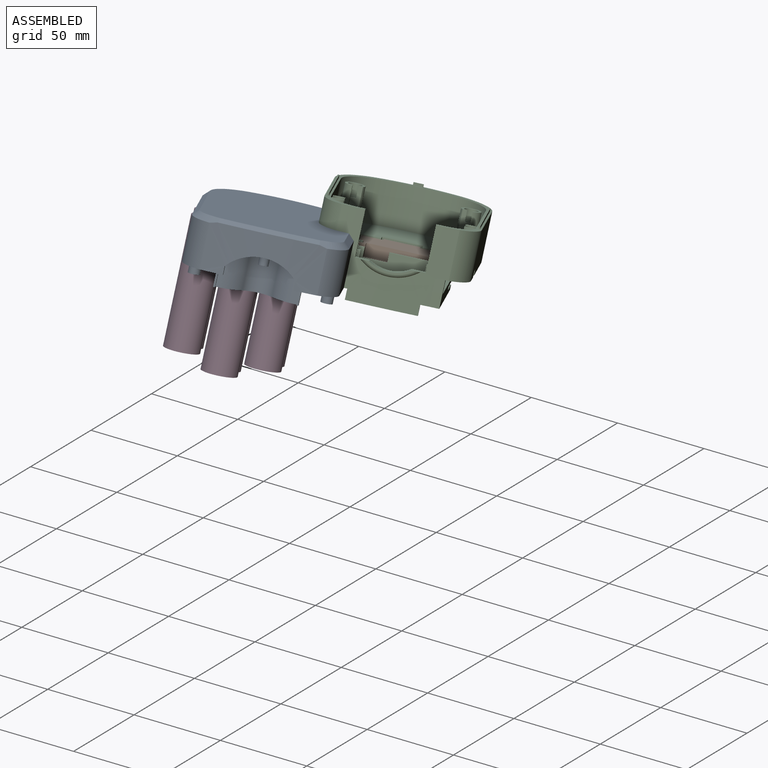
[diagram: assembled view]
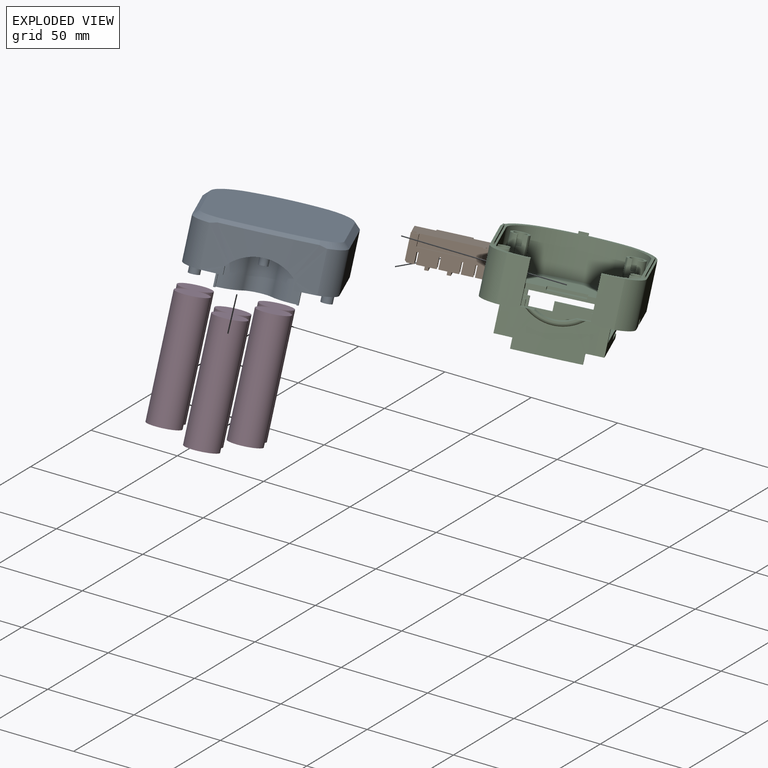
[diagram: exploded view]
GUIDED TOUR — FREECAD ASSEMBLY "Case"

This assembly has 4 components, labeled P0..P3 below (a component is one placed body or linked part; the same part can appear more than once), held together by 0 modeled joints plus 5 derived contact edges. A joint is a constraint between two components; its type names the relative motion it leaves free:
  CONTACT — a derived adjacency edge — the two components touch in the source model (clearance under 2% of the assembly's diagonal); it is measured from the geometry, not a modeled constraint.
Axis/direction vectors are unit vectors and 'through' points are millimeter coordinates, both in the assembly's world frame.

MATES
  1. CONTACT "contact_0_1": P0 <-> P1, contact direction (0.557, 0.830, 0.014) through (-5.95, 88.37, -22.90) mm (derived from contact, not a modeled constraint)
  2. CONTACT "contact_0_2": P0 <-> P2, contact direction (1.000, 0.000, 0.000) through (-9.69, 91.87, -24.08) mm (derived from contact, not a modeled constraint)
  3. CONTACT "contact_0_3": P0 <-> P3, contact direction (-0.359, 0.256, -0.898) through (-14.92, 54.15, 5.76) mm (derived from contact, not a modeled constraint)
  4. CONTACT "contact_1_2": P1 <-> P2, contact direction (0.000, 0.000, 1.000) through (-5.37, 91.90, -23.10) mm (derived from contact, not a modeled constraint)
  5. CONTACT "contact_2_3": P2 <-> P3, contact direction (-1.000, 0.000, 0.000) through (-11.04, 62.23, 1.64) mm (derived from contact, not a modeled constraint)

ASSEMBLY ORDER
  1. P0 — the base component [order heuristic]
  2. P1 [order heuristic]
  3. P2 [order heuristic]
  4. P3 [order heuristic]
Order-tag legend:
  [order heuristic] — this assembly is geometrically interlocked (no collision-free removal order exists), so components are listed in mate-graph order; insertion feasibility is not verified.

Of the 4 components, 4 carry a construction recipe — the FreeCAD feature program (sketches with constraints, then the solid features that consume them) that regenerates the part from scratch, quoted from this document or from the linked companion document it references; the rest are supplied as boundary geometry only. The tour below walks the components in assembly order: each is shown spotlighted twice — in the assembled view, then in the exploded view, where a leader line traces a displaced component back to its assembled socket (components that stay in place when exploded have no leader line; saturated green if recipe-attached, orange if geometry-only; every other component desaturated gray) — followed by its recipe or geometry summary and the mates that hold it.
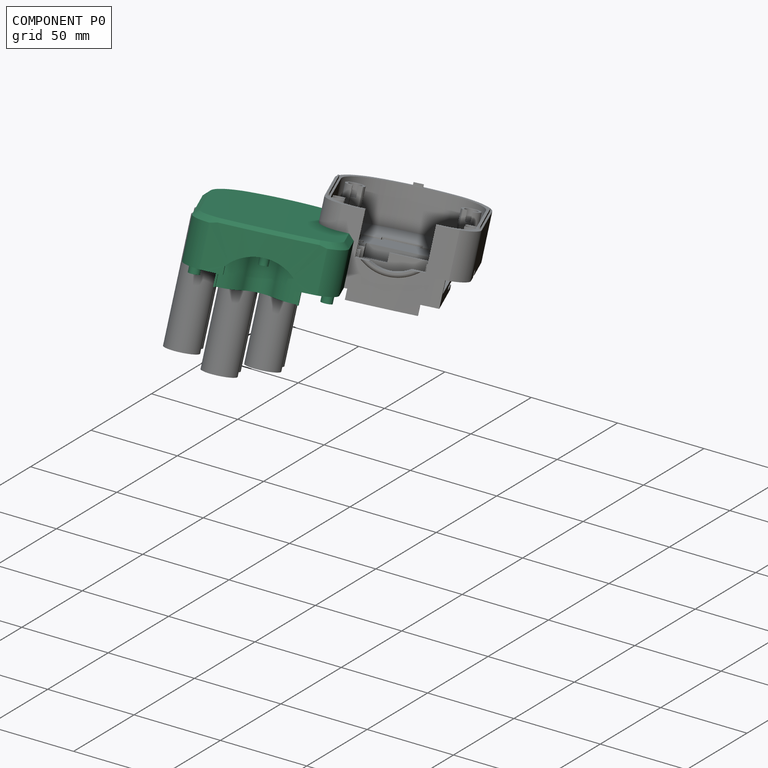
[diagram: component P0 — assembled]
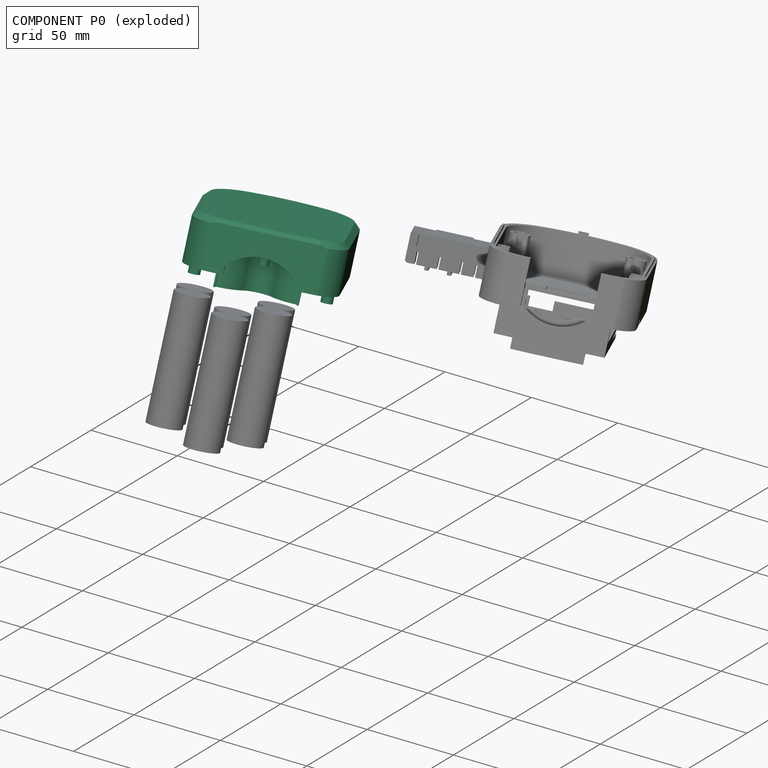
[diagram: component P0 — exploded]
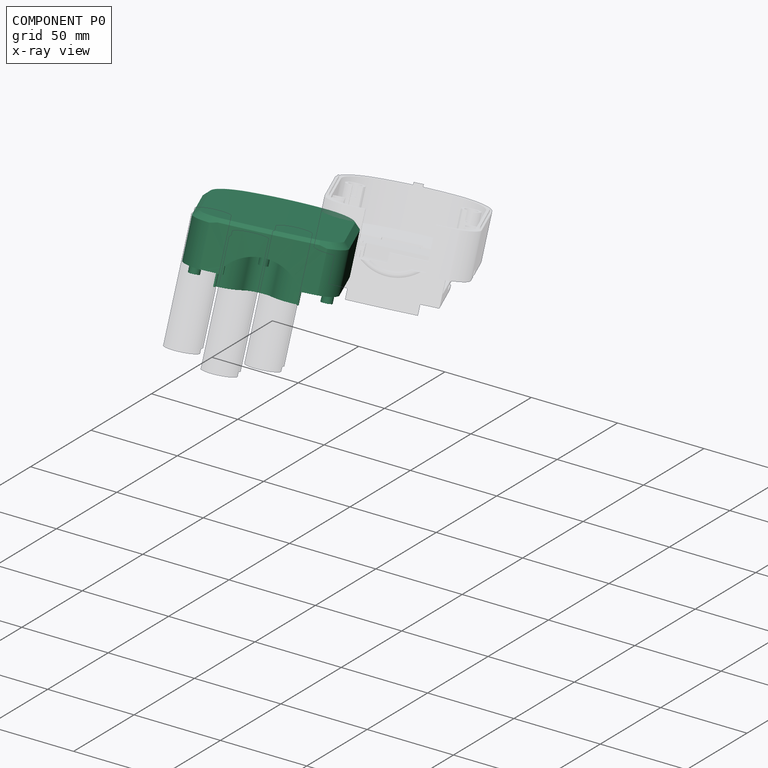
[diagram: component P0 — x-ray view]
COMPONENT P0 — recipe-attached ("Bottom001", modeled in this document).
Held by: resting contact with P1 (derived edge); resting contact with P2 (derived edge); resting contact with P3 (derived edge).
Construction recipe (the document's own serialized feature program — sketch geometry with constraints, then the solid features built on it; lengths are millimeters unless a unit is written):

FEATURE [PartDesign::FeatureBase] Clone
  BaseFeature = -> Body
  Suppressed = false
FEATURE [Sketcher::SketchObject] Sketch001
  ArcFitTolerance = 1e-06
  AttachmentSupport = -> [Clone]
  ExternalGeometry = -> [Clone]
  ExternalTypes = [0]
  FullyConstrained = true
  MakeInternals = false
  MapMode = 5
  Placement = pos=(0,0,0) rot=(1,0,0;3.14159rad)
  sketch-geometry (7):
    g0: LineSegment StartX=-19.75 StartY=-4.16832 StartZ=0 EndX=19.75 EndY=-4.16832 EndZ=0
    g1: LineSegment StartX=19.75 StartY=-4.16832 StartZ=0 EndX=19.75 EndY=-6.36832 EndZ=0
    g2: ArcOfCircle CenterX=19.75 CenterY=-22.1695 CenterZ=0 NormalX=0 NormalY=0 NormalZ=1 AngleXU=0 Radius=15.8011 StartAngle=1.5708 EndAngle=2.49201
    g3: ArcOfCircle CenterX=0 CenterY=-7.16832 CenterZ=0 NormalX=0 NormalY=0 NormalZ=1 AngleXU=0 Radius=9 StartAngle=3.79118 EndAngle=5.6336
    g4: ArcOfCircle CenterX=-19.75 CenterY=-22.1695 CenterZ=0 NormalX=0 NormalY=0 NormalZ=1 AngleXU=0 Radius=15.8011 StartAngle=0.649586 EndAngle=1.5708
    g5: LineSegment StartX=-19.75 StartY=-6.36832 StartZ=0 EndX=-19.75 EndY=-4.16832 EndZ=0
    g6: GeomPoint X=0 Y=-16.1683 Z=0
  constraints (20):
    c: Horizontal(g0)
    c: Coincident(g0,g1)
    c: Vertical(g1)
    c: Perpendicular(g1,g2) = 4.71239
    c: Tangent(g2,g3) = 1.5708
    c: Tangent(g3,g4) = 1.5708
    c: Coincident(g4,g5)
    c: Coincident(g5,g0)
    c: Vertical(g5)
    c: Perpendicular(g4,g5)
    c: Radius(g3) = 9
    c: PointOnObject(g3,g-2)
    c: Equal(g2,g4)
    c: DistanceX(g0,g0) = 39.5
    c: Equal(g1,g5)
    c: DistanceY(g1,g1) = 2.2
    c: PointOnObject(g6,g3)
    c: PointOnObject(g6,g-2)
    c: Distance(g6,g0) = 12
    c: Distance(g-3,g0) = 3.25
FEATURE [PartDesign::Pocket] Pocket
  BaseFeature = -> Clone
  Direction = (0,0,1)
  Length = 30
  Length2 = 5
  Offset = -2
  Profile = -> Sketch001
  ReferenceAxis = -> Sketch001 [N_Axis]
  Refine = true
  SideType = 0
  Suppressed = false
  Type = 0
  Type2 = 0
FEATURE [Sketcher::SketchObject] Sketch002
  ArcFitTolerance = 1e-06
  AttachmentSupport = -> [Pocket]
  ExternalGeometry = -> [Pocket]
  ExternalTypes = [0]
  FullyConstrained = true
  MakeInternals = false
  MapMode = 5
  Placement = pos=(0,0,0) rot=(1,0,0;3.14159rad)
  sketch-geometry (12):
    g0: LineSegment StartX=-35.25 StartY=-18.6683 StartZ=0 EndX=-35.25 EndY=-77 EndZ=0
    g1: ArcOfCircle CenterX=-12.045 CenterY=-77 CenterZ=0 NormalX=0 NormalY=0 NormalZ=1 AngleXU=0 Radius=23.205 StartAngle=3.14159 EndAngle=4.35935
    g2: ArcOfCircle CenterX=0 CenterY=-44.3109 CenterZ=0 NormalX=0 NormalY=0 NormalZ=1 AngleXU=0 Radius=58.0426 StartAngle=4.35935 EndAngle=5.06542
    g3: ArcOfCircle CenterX=12.045 CenterY=-77 CenterZ=0 NormalX=0 NormalY=0 NormalZ=1 AngleXU=0 Radius=23.205 StartAngle=5.06542 EndAngle=6.28319
    g4: LineSegment StartX=35.25 StartY=-77 StartZ=0 EndX=35.25 EndY=-18.6683 EndZ=0
    g5: ArcOfCircle CenterX=20.75 CenterY=-18.6683 CenterZ=0 NormalX=0 NormalY=0 NormalZ=1 AngleXU=0 Radius=14.5 StartAngle=0 EndAngle=1.5708
    g6: LineSegment StartX=20.75 StartY=-4.16832 StartZ=0 EndX=20.75 EndY=-7.36832 EndZ=0
    g7: ArcOfCircle CenterX=20.75 CenterY=-24.0445 CenterZ=0 NormalX=0 NormalY=0 NormalZ=1 AngleXU=0 Radius=16.6761 StartAngle=1.5708 EndAngle=2.45326
    g8: ArcOfCircle CenterX=0 CenterY=-6.97699 CenterZ=0 NormalX=0 NormalY=0 NormalZ=1 AngleXU=0 Radius=10.1913 StartAngle=3.82992 EndAngle=5.59486
    g9: ArcOfCircle CenterX=-20.75 CenterY=-24.0445 CenterZ=0 NormalX=0 NormalY=0 NormalZ=1 AngleXU=0 Radius=16.6761 StartAngle=0.688328 EndAngle=1.5708
    g10: LineSegment StartX=-20.75 StartY=-7.36832 StartZ=0 EndX=-20.75 EndY=-4.16832 EndZ=0
    g11: ArcOfCircle CenterX=-20.75 CenterY=-18.6683 CenterZ=0 NormalX=0 NormalY=0 NormalZ=1 AngleXU=0 Radius=14.5 StartAngle=1.5708 EndAngle=3.14159
  constraints (33):
    c: Vertical(g0)
    c: Tangent(g0,g1) = -1.5708
    c: Tangent(g1,g2) = -1.5708
    c: Tangent(g2,g3) = -1.5708
    c: Tangent(g3,g4) = -1.5708
    c: Tangent(g4,g5) = -1.5708
    c: Coincident(g5,g6)
    c: Vertical(g6)
    c: Perpendicular(g6,g7) = 4.71239
    c: Tangent(g7,g8) = 1.5708
    c: Tangent(g8,g9) = 1.5708
    c: Perpendicular(g9,g10) = 4.71239
    c: Perpendicular(g10,g11) = 1.5708
    c: Tangent(g11,g0) = -1.5708
    c: Vertical(g4)
    c: Equal(g0,g4)
    c: PointOnObject(g2,g-2)
    c: PointOnObject(g8,g-2)
    c: Horizontal(g7,g8)
    c: Vertical(g10)
    c: Equal(g9,g7)
    c: Horizontal(g10,g5)
    c: Equal(g5,g11)
    c: Distance(g-3,g4) = 3
    c: Distance(g2,g-7) = 3
    c: Distance(g-10,g0) = 3
    c: Distance(g6,g-12) = 1
    c: Horizontal(g10,g-16)
    c: DistanceY(g9,g-16) = 1
    c: Distance(g8,g-14) = 1
    c: Distance(g-13,g7) = -1.25
    c: Horizontal(g0,g-10)
    c: Distance(g1,g-9) = 0.67
FEATURE [PartDesign::Pocket] Pocket001
  BaseFeature = -> Pocket
  Direction = (0,0,1)
  Length = 5
  Length2 = 5
  Profile = -> Sketch002
  ReferenceAxis = -> Sketch002 [N_Axis]
  Refine = true
  SideType = 0
  Suppressed = false
  Type = 3
  Type2 = 0
  UpToFace = -> Pocket [Face17]
FEATURE [Sketcher::SketchObject] Sketch003
  ArcFitTolerance = 1e-06
  AttachmentSupport = -> [Pocket001]
  ExternalGeometry = -> [Pocket001]
  ExternalTypes = [0,0]
  FullyConstrained = true
  MakeInternals = false
  MapMode = 5
  Placement = pos=(0,0,30) rot=(1,0,0;3.14159rad)
  sketch-geometry (8):
    g0: Circle CenterX=-32.25 CenterY=-31.1683 CenterZ=0 NormalX=0 NormalY=0 NormalZ=1 AngleXU=0 Radius=3
    g1: Circle CenterX=-28.25 CenterY=-81.5097 CenterZ=0 NormalX=0 NormalY=0 NormalZ=1 AngleXU=0 Radius=3
    g2: Circle CenterX=28.25 CenterY=-81.5097 CenterZ=0 NormalX=0 NormalY=0 NormalZ=1 AngleXU=0 Radius=3
    g3: Circle CenterX=32.25 CenterY=-31.1683 CenterZ=0 NormalX=0 NormalY=0 NormalZ=1 AngleXU=0 Radius=3
    g4: GeomPoint X=0 Y=-31.1683 Z=0
    g5: GeomPoint X=0 Y=-81.5097 Z=0
    g6: LineSegment [constr] StartX=19.75 StartY=-4.16832 StartZ=0 EndX=19.75 EndY=-34.1683 EndZ=0
    g7: LineSegment [constr] StartX=32.25 StartY=-34.1683 StartZ=0 EndX=19.75 EndY=-34.1683 EndZ=0
  constraints (19):
    c: Horizontal(g0,g3)
    c: Horizontal(g2,g1)
    c: Equal(g1,g0)
    c: Equal(g0,g3)
    c: Equal(g3,g2)
    c: Diameter(g2) = 6
    c: Distance(g3,g0) = 58.5
    c: PointOnObject(g4,g-2)
    c: Symmetric(g0,g3,g4)
    c: Distance(g1,g0) = 44.5
    c: PointOnObject(g5,g-2)
    c: Symmetric(g1,g2,g5)
    c: Distance(g1,g2) = 50.5
    c: Coincident(g6,g-25)
    c: Vertical(g6)
    c: Tangent(g7,g3) = 1.5708
    c: Coincident(g7,g6)
    c: Horizontal(g7)
    c: DistanceY(g6,g6) = 30
FEATURE [PartDesign::Pad] Pad001
  BaseFeature = -> Pocket001
  Direction = (0,0,-1)
  Length = 30
  Length2 = 10
  Profile = -> Sketch003
  ReferenceAxis = -> Sketch003 [N_Axis]
  Refine = true
  SideType = 0
  Suppressed = false
  Type = 0
  Type2 = 0
FEATURE [Sketcher::SketchObject] Sketch004
  ArcFitTolerance = 1e-06
  AttachmentSupport = -> [Pad001]
  ExternalGeometry = -> [Pad001]
  ExternalTypes = [0,0,0]
  FullyConstrained = true
  MakeInternals = false
  MapMode = 5
  Placement = pos=(0,0,0) rot=(1,0,0;3.14159rad)
  sketch-geometry (5):
    g0: LineSegment StartX=-31.0784 StartY=-80.5097 StartZ=0 EndX=-34.9831 EndY=-80.5097 EndZ=0
    g1: LineSegment StartX=-34.9831 StartY=-80.5097 StartZ=0 EndX=-34.9831 EndY=-82.5097 EndZ=0
    g2: LineSegment StartX=-34.9831 StartY=-82.5097 StartZ=0 EndX=-31.0784 EndY=-82.5097 EndZ=0
    g3: LineSegment StartX=-31.0784 StartY=-82.5097 StartZ=0 EndX=-31.0784 EndY=-80.5097 EndZ=0
    g4: GeomPoint X=-31.0784 Y=-81.5097 Z=0
  constraints (13):
    c: Coincident(g0,g1)
    c: Coincident(g1,g2)
    c: Coincident(g2,g3)
    c: Coincident(g3,g0)
    c: Horizontal(g0)
    c: Horizontal(g2)
    c: Vertical(g1)
    c: Vertical(g3)
    c: PointOnObject(g0,g-3)
    c: PointOnObject(g0,g-29)
    c: PointOnObject(g2,g-3)
    c: Symmetric(g3,g3,g4)
    c: DistanceY(g3,g3) = 2
FEATURE [PartDesign::Pad] Pad002
  BaseFeature = -> Pad001
  Direction = (0,0,-1)
  Length = 10
  Length2 = 10
  Profile = -> Sketch004
  ReferenceAxis = -> Sketch004 [N_Axis]
  Refine = true
  SideType = 0
  Suppressed = false
  Type = 3
  Type2 = 0
  UpToFace = -> Pad001 [Face28]
FEATURE [PartDesign::Mirrored] Mirrored
  BaseFeature = -> Pad002
  MirrorPlane = -> Sketch004 [V_Axis]
  Originals = -> [Pad002]
  Refine = true
  Suppressed = false
  TransformMode = 0
FEATURE [Sketcher::SketchObject] Sketch005
  ArcFitTolerance = 1e-06
  AttachmentSupport = -> [Mirrored]
  ExternalGeometry = -> [Mirrored]
  ExternalTypes = [0,0,0]
  FullyConstrained = false
  MakeInternals = false
  MapMode = 5
  Placement = pos=(0,0,0) rot=(1,0,0;3.14159rad)
  sketch-geometry (12):
    g0: LineSegment StartX=-54.6573 StartY=0 StartZ=0 EndX=-54.6573 EndY=-111 EndZ=0
    g1: LineSegment StartX=-54.6573 StartY=-111 StartZ=0 EndX=54.6573 EndY=-111 EndZ=0
    g2: LineSegment StartX=54.6573 StartY=-111 StartZ=0 EndX=54.6573 EndY=0 EndZ=0
    g3: LineSegment StartX=54.6573 StartY=0 StartZ=0 EndX=-54.6573 EndY=0 EndZ=0
    g4: Circle CenterX=-32.25 CenterY=-31.1683 CenterZ=0 NormalX=0 NormalY=0 NormalZ=1 AngleXU=0 Radius=3
    g5: Circle CenterX=28.25 CenterY=-81.5097 CenterZ=0 NormalX=0 NormalY=0 NormalZ=1 AngleXU=0 Radius=3
    g6: Circle CenterX=-28.25 CenterY=-81.5097 CenterZ=0 NormalX=0 NormalY=0 NormalZ=1 AngleXU=0 Radius=3
    g7: Circle CenterX=32.25 CenterY=-31.1683 CenterZ=0 NormalX=0 NormalY=0 NormalZ=1 AngleXU=0 Radius=3
    g8: LineSegment StartX=20.75 StartY=-4.16832 StartZ=0 EndX=-20.75 EndY=-4.16832 EndZ=0
    g9: LineSegment StartX=-20.75 StartY=-4.16832 StartZ=0 EndX=-20.75 EndY=-18.1683 EndZ=0
    g10: LineSegment StartX=-20.75 StartY=-18.1683 StartZ=0 EndX=20.75 EndY=-18.1683 EndZ=0
    g11: LineSegment StartX=20.75 StartY=-18.1683 StartZ=0 EndX=20.75 EndY=-4.16832 EndZ=0
  constraints (29):
    c: Coincident(g0,g1)
    c: Coincident(g1,g2)
    c: Coincident(g2,g3)
    c: Coincident(g3,g0)
    c: Vertical(g0)
    c: Vertical(g2)
    c: Horizontal(g1)
    c: Horizontal(g3)
    c: Symmetric(g3,g3,g-1)
    c: DistanceY(g2,g2) = 111
    c: Coincident(g4,g-41)
    c: PointOnObject(g-41,g4)
    c: Coincident(g5,g-21)
    c: PointOnObject(g-21,g5)
    c: Coincident(g6,g-28)
    c: PointOnObject(g-28,g6)
    c: Coincident(g7,g-42)
    c: PointOnObject(g-18,g7)
    c: Coincident(g8,g9)
    c: Coincident(g9,g10)
    c: Coincident(g10,g11)
    c: Coincident(g11,g8)
    c: Horizontal(g8)
    c: Horizontal(g10)
    c: Vertical(g9)
    c: Vertical(g11)
    c: Coincident(g8,g-16)
    c: PointOnObject(g-33,g9)
    c: Distance(g-13,g10) = 1
FEATURE [PartDesign::Pocket] Pocket002
  BaseFeature = -> Mirrored
  Direction = (0,0,1)
  Length = 7
  Length2 = 5
  Profile = -> Sketch005
  ReferenceAxis = -> Sketch005 [N_Axis]
  Refine = true
  SideType = 0
  Suppressed = false
  Type = 0
  Type2 = 0
FEATURE [PartDesign::Chamfer] Chamfer
  Angle = 45
  Base = -> Pocket002 [Edge33]
  BaseFeature = -> Pocket002
  ChamferType = 0
  FlipDirection = false
  Refine = true
  Size = 3
  Size2 = 1
  SupportTransform = false
  Suppressed = false
  UseAllEdges = false
FEATURE [PartDesign::Chamfer] Chamfer001
  Angle = 45
  Base = -> Chamfer [Edge44]
  BaseFeature = -> Chamfer
  ChamferType = 0
  FlipDirection = false
  Refine = true
  Size = 2
  Size2 = 1
  SupportTransform = false
  Suppressed = false
  UseAllEdges = false
FEATURE [Sketcher::SketchObject] Sketch006
  ArcFitTolerance = 1e-06
  AttachmentSupport = -> [Chamfer001]
  ExternalGeometry = -> [Chamfer001]
  ExternalTypes = [0]
  FullyConstrained = true
  MakeInternals = false
  MapMode = 5
  Placement = pos=(0,0,30) rot=(1,0,0;3.14159rad)
  sketch-geometry (1):
    g0: Circle CenterX=-1.974e-13 CenterY=-12.612 CenterZ=0 NormalX=0 NormalY=0 NormalZ=1 AngleXU=0 Radius=2.5
  constraints (2):
    c: Diameter(g0) = 5
    c: Symmetric(g-6,g-7,g0)
FEATURE [PartDesign::Pad] Pad003
  BaseFeature = -> Chamfer001
  Direction = (0,0,-1)
  Length = 12
  Length2 = 10
  Profile = -> Sketch006
  ReferenceAxis = -> Sketch006 [N_Axis]
  Refine = true
  SideType = 0
  Suppressed = false
  Type = 0
  Type2 = 0
FEATURE [PartDesign::Fillet] Fillet
  Base = -> Pad003 [Edge144,Edge121,Edge86]
  BaseFeature = -> Pad003
  Radius = 1
  Refine = true
  SupportTransform = false
  Suppressed = false
  UseAllEdges = false
FEATURE [PartDesign::Hole] Hole
  BaseFeature = -> Fillet
  BaseProfileType = 7
  CustomThreadClearance = 0
  Depth = 17
  DepthType = 0
  Diameter = 2.5
  DrillForDepth = false
  DrillPoint = 1
  DrillPointAngle = 118
  HoleCutCountersinkAngle = 90
  HoleCutCustomValues = false
  HoleCutDepth = 0
  HoleCutDiameter = 0
  HoleCutType = 0
  ModelThread = false
  Profile = -> Fillet [Face46,Face26,Face40,Face45]
  Refine = true
  Suppressed = false
  Tapered = false
  TaperedAngle = 90
  ThreadClass = 0
  ThreadDepth = 17
  ThreadDepthType = 0
  ThreadDiameter = 3
  ThreadDirection = 0
  ThreadFit = 0
  ThreadSize = 9
  ThreadType = 1
  Threaded = true
  UseCustomThreadClearance = false
FEATURE [Sketcher::SketchObject] Sketch008
  ArcFitTolerance = 1e-06
  AttachmentSupport = -> [Hole]
  ExternalGeometry = -> [Hole]
  ExternalTypes = [0,0]
  FullyConstrained = true
  MakeInternals = false
  MapMode = 5
  Placement = pos=(0,4.16832,0) rot=(0,0.707107,0.707107;3.14159rad)
  sketch-geometry (6):
    g0: ArcOfCircle CenterX=2.7e-15 CenterY=-3.37405 CenterZ=0 NormalX=0 NormalY=0 NormalZ=1 AngleXU=0 Radius=22.6741 StartAngle=0.709671 EndAngle=2.43192
    g1: GeomPoint X=0 Y=11.4 Z=0
    g2: LineSegment StartX=-17.2 StartY=11.4 StartZ=0 EndX=-17.2 EndY=7 EndZ=0
    g3: LineSegment StartX=-17.2 StartY=7 StartZ=0 EndX=17.2 EndY=7 EndZ=0
    g4: LineSegment StartX=17.2 StartY=7 StartZ=0 EndX=17.2 EndY=11.4 EndZ=0
    g5: GeomPoint X=0 Y=19.3 Z=0
  constraints (16):
    c: Horizontal(g0,g0)
    c: PointOnObject(g1,g-2)
    c: Symmetric(g0,g0,g1)
    c: Coincident(g0,g2)
    c: PointOnObject(g2,g-4)
    c: Vertical(g2)
    c: Coincident(g2,g3)
    c: PointOnObject(g3,g-4)
    c: Coincident(g3,g4)
    c: Coincident(g4,g0)
    c: Vertical(g4)
    c: DistanceX(g3,g3) = 34.4
    c: DistanceY(g4,g4) = 4.4
    c: PointOnObject(g5,g0)
    c: PointOnObject(g5,g-2)
    c: Distance(g5,g-3) = 1.3
FEATURE [PartDesign::Pocket] Pocket003
  BaseFeature = -> Hole
  Direction = (0,-1,2e-16)
  Length = 5
  Length2 = 5
  Profile = -> Sketch008
  ReferenceAxis = -> Sketch008 [N_Axis]
  Refine = true
  SideType = 0
  Suppressed = false
  Type = 0
  Type2 = 0
FEATURE [Sketcher::SketchObject] Sketch009
  ArcFitTolerance = 1e-06
  AttachmentSupport = -> [Pocket003]
  ExternalGeometry = -> [Pocket003]
  ExternalTypes = [0]
  FullyConstrained = true
  MakeInternals = false
  MapMode = 5
  Placement = pos=(0,0,7) rot=(1,0,0;3.14159rad)
  sketch-geometry (17):
    g0: LineSegment StartX=-37.375 StartY=-18.6683 StartZ=0 EndX=-37.375 EndY=-77 EndZ=0
    g1: LineSegment StartX=-37.375 StartY=-77 StartZ=0 EndX=-36.125 EndY=-77 EndZ=0
    g2: LineSegment StartX=-36.125 StartY=-77 StartZ=0 EndX=-36.125 EndY=-18.6683 EndZ=0
    g3: LineSegment StartX=-36.125 StartY=-18.6683 StartZ=0 EndX=-37.375 EndY=-18.6683 EndZ=0
    g4: LineSegment StartX=36.125 StartY=-18.6683 StartZ=0 EndX=36.125 EndY=-77 EndZ=0
    g5: LineSegment StartX=36.125 StartY=-77 StartZ=0 EndX=37.375 EndY=-77 EndZ=0
    g6: LineSegment StartX=37.375 StartY=-77 StartZ=0 EndX=37.375 EndY=-18.6683 EndZ=0
    g7: LineSegment StartX=37.375 StartY=-18.6683 StartZ=0 EndX=36.125 EndY=-18.6683 EndZ=0
    g8: LineSegment StartX=-2.5 StartY=-103.229 StartZ=0 EndX=-2.5 EndY=-104.479 EndZ=0
    g9: LineSegment StartX=-2.5 StartY=-104.479 StartZ=0 EndX=2.5 EndY=-104.479 EndZ=0
    g10: LineSegment StartX=2.5 StartY=-104.479 StartZ=0 EndX=2.5 EndY=-103.229 EndZ=0
    g11: LineSegment StartX=2.5 StartY=-103.229 StartZ=0 EndX=-2.5 EndY=-103.229 EndZ=0
    g12: GeomPoint X=36.75 Y=-77 Z=0
    g13: GeomPoint X=-36.75 Y=-77 Z=0
    g14: GeomPoint X=-2.7e-15 Y=-103.854 Z=0
    g15: GeomPoint X=0 Y=-102.354 Z=0
    g16: GeomPoint X=-5.3e-15 Y=-105.354 Z=0
  constraints (39):
    c: Coincident(g0,g1)
    c: Coincident(g1,g2)
    c: Coincident(g2,g3)
    c: Coincident(g3,g0)
    c: Vertical(g0)
    c: Vertical(g2)
    c: Horizontal(g1)
    c: Horizontal(g3)
    c: Coincident(g4,g5)
    c: Coincident(g5,g6)
    c: Coincident(g6,g7)
    c: Coincident(g7,g4)
    c: Vertical(g4)
    c: Vertical(g6)
    c: Horizontal(g5)
    c: Horizontal(g7)
    c: Coincident(g8,g9)
    c: Coincident(g9,g10)
    c: Coincident(g10,g11)
    c: Coincident(g11,g8)
    c: Vertical(g8)
    c: Vertical(g10)
    c: Horizontal(g9)
    c: Symmetric(g8,g10,g-2)
    c: DistanceY(g8,g8) = 1.25
    c: DistanceX(g11,g11) = 5
    c: Equal(g1,g8)
    c: Equal(g8,g5)
    c: Symmetric(g5,g5,g12)
    c: Symmetric(g-10,g-33,g12)
    c: Horizontal(g4,g-9)
    c: Horizontal(g-23,g2)
    c: Symmetric(g1,g1,g13)
    c: Symmetric(g-22,g-30,g13)
    c: PointOnObject(g15,g-2)
    c: PointOnObject(g16,g-31)
    c: PointOnObject(g15,g-16)
    c: Symmetric(g15,g16,g14)
    c: Symmetric(g8,g9,g14)
FEATURE [PartDesign::Pocket] Pocket004
  BaseFeature = -> Pocket003
  Direction = (0,0,1)
  Length = 3
  Length2 = 5
  Profile = -> Sketch009
  ReferenceAxis = -> Sketch009 [N_Axis]
  Refine = true
  SideType = 0
  Suppressed = false
  Type = 0
  Type2 = 0
FEATURE [Part::DatumPlane] DatumPlane
  AttachmentOffset = pos=(0,0,30) rot=(0,0,1;0rad)
  AttachmentSupport = -> [Pocket004]
  MapMode = 5
  Placement = pos=(0,34.1683,-6.7e-15) rot=(0,0.707107,0.707107;3.14159rad)
FEATURE [Sketcher::SketchObject] Sketch010
  ArcFitTolerance = 1e-06
  AttachmentSupport = -> [DatumPlane]
  ExternalGeometry = -> [Pocket004]
  ExternalTypes = [0]
  FullyConstrained = true
  MakeInternals = false
  MapMode = 5
  Placement = pos=(0,34.1683,-6.7e-15) rot=(0,0.707107,0.707107;3.14159rad)
  sketch-geometry (12):
    g0: ArcOfCircle CenterX=-20 CenterY=21 CenterZ=0 NormalX=0 NormalY=0 NormalZ=1 AngleXU=0 Radius=10.0231 StartAngle=2.02655 EndAngle=3.07375
    g1: ArcOfCircle CenterX=-20 CenterY=21 CenterZ=0 NormalX=0 NormalY=0 NormalZ=1 AngleXU=0 Radius=10.0231 StartAngle=0.0678445 EndAngle=1.11504
    g2: ArcOfCircle CenterX=0 CenterY=21 CenterZ=0 NormalX=0 NormalY=0 NormalZ=1 AngleXU=0 Radius=10.0231 StartAngle=2.02655 EndAngle=3.07375
    g3: ArcOfCircle CenterX=0 CenterY=21 CenterZ=0 NormalX=0 NormalY=0 NormalZ=1 AngleXU=0 Radius=10.0231 StartAngle=0.0678445 EndAngle=1.11504
    g4: ArcOfCircle CenterX=20 CenterY=21 CenterZ=0 NormalX=0 NormalY=0 NormalZ=1 AngleXU=0 Radius=10.0231 StartAngle=2.02655 EndAngle=3.07375
    g5: ArcOfCircle CenterX=20 CenterY=21 CenterZ=0 NormalX=0 NormalY=0 NormalZ=1 AngleXU=0 Radius=10.0231 StartAngle=0.0678445 EndAngle=1.11504
    g6: LineSegment StartX=-15.5885 StartY=30 StartZ=0 EndX=-4.41154 EndY=30 EndZ=0
    g7: LineSegment StartX=4.41154 StartY=30 StartZ=0 EndX=15.5885 EndY=30 EndZ=0
    g8: LineSegment StartX=30 StartY=21.6795 StartZ=0 EndX=30 EndY=30 EndZ=0
    g9: LineSegment StartX=24.4115 StartY=30 StartZ=0 EndX=30 EndY=30 EndZ=0
    g10: LineSegment StartX=-30 StartY=21.6795 StartZ=0 EndX=-30 EndY=30 EndZ=0
    g11: LineSegment StartX=-24.4115 StartY=30 StartZ=0 EndX=-30 EndY=30 EndZ=0
  constraints (39):
    c: Angle(g0) = 1.0472
    c: PointOnObject(g0,g-3)
    c: Angle(g1) = 1.0472
    c: Coincident(g1,g0)
    c: PointOnObject(g1,g-3)
    c: PointOnObject(g2,g-2)
    c: PointOnObject(g2,g-3)
    c: Angle(g3) = 1.0472
    c: Coincident(g3,g2)
    c: PointOnObject(g3,g-3)
    c: Angle(g4) = 1.0472
    c: PointOnObject(g4,g-3)
    c: Angle(g5) = 1.0472
    c: Coincident(g5,g4)
    c: PointOnObject(g5,g-3)
    c: Horizontal(g4,g2)
    c: Horizontal(g2,g0)
    c: Horizontal(g0,g1)
    c: Horizontal(g2,g3)
    c: Horizontal(g4,g5)
    c: Coincident(g3,g4)
    c: Coincident(g2,g1)
    c: DistanceX(g0,g-1) = 20
    c: DistanceX(g-1,g4) = 20
    c: Distance(g2,g-3) = 9
    c: Coincident(g6,g1)
    c: Coincident(g6,g2)
    c: Coincident(g7,g3)
    c: Coincident(g7,g4)
    c: Coincident(g8,g5)
    c: PointOnObject(g8,g-3)
    c: Vertical(g8)
    c: Coincident(g9,g5)
    c: Coincident(g9,g8)
    c: Coincident(g10,g0)
    c: Vertical(g10)
    c: Coincident(g11,g0)
    c: Coincident(g11,g10)
    c: Horizontal(g11)
FEATURE [PartDesign::Pad] Pad005
  BaseFeature = -> Pocket004
  Direction = (0,1,0)
  Length = 20
  Length2 = 10
  Profile = -> Sketch010
  ReferenceAxis = -> Sketch010 [N_Axis]
  Refine = true
  SideType = 0
  Suppressed = false
  Type = 0
  Type2 = 0
FEATURE [PartDesign::Fillet] Fillet001
  Base = -> Pad005 [Edge136,Edge141,Edge146,Edge153]
  BaseFeature = -> Pad005
  Radius = 0.25
  Refine = true
  SupportTransform = false
  Suppressed = false
  UseAllEdges = false
FEATURE [Sketcher::SketchObject] Sketch043
  ArcFitTolerance = 1e-06
  AttachmentSupport = -> [Fillet001]
  ExternalGeometry = -> [Fillet001]
  ExternalTypes = [0]
  FullyConstrained = true
  MakeInternals = false
  MapMode = 5
  Placement = pos=(0,0,30) rot=(1,0,0;3.14159rad)
FEATURE [PartDesign::Pad] Pad029
  BaseFeature = -> Fillet001
  Direction = (0,0,-1)
  Length = 5
  Length2 = 10
  Profile = -> Sketch043
  ReferenceAxis = -> Sketch043 [N_Axis]
  Refine = true
  SideType = 0
  Suppressed = false
  Type = 0
  Type2 = 0
FEATURE [PartDesign::Pad] Pad030
  BaseFeature = -> Pad029
  Direction = (0,0,-1)
  Length = 4
  Length2 = 10
  Profile = -> Pad029 [Face111]
  Refine = true
  SideType = 0
  Suppressed = false
  Type = 0
  Type2 = 0
FEATURE [PartDesign::Fillet] Fillet004
  Base = -> Pad030 [Edge270]
  BaseFeature = -> Pad030
  Radius = 1
  Refine = true
  SupportTransform = false
  Suppressed = false
  UseAllEdges = false
FEATURE [Sketcher::SketchObject] Sketch044
  ArcFitTolerance = 1e-06
  AttachmentSupport = -> [Fillet004]
  ExternalGeometry = -> [Fillet004]
  ExternalTypes = [0,0,0,0,0]
  FullyConstrained = true
  MakeInternals = false
  MapMode = 5
  Placement = pos=(0,0,7) rot=(1,0,0;3.14159rad)
  sketch-geometry (10):
    g0: LineSegment StartX=-37.65 StartY=-79 StartZ=0 EndX=-35.85 EndY=-79 EndZ=0
    g1: LineSegment StartX=-35.85 StartY=-79 StartZ=0 EndX=-35.85 EndY=-16.6683 EndZ=0
    g2: LineSegment StartX=-35.85 StartY=-16.6683 StartZ=0 EndX=-37.65 EndY=-16.6683 EndZ=0
    g3: LineSegment StartX=-37.65 StartY=-16.6683 StartZ=0 EndX=-37.65 EndY=-79 EndZ=0
    g4: GeomPoint [constr] X=-36.75 Y=-47.8342 Z=0
    g5: LineSegment StartX=-3.5 StartY=-104.754 StartZ=0 EndX=3.5 EndY=-104.754 EndZ=0
    g6: LineSegment StartX=3.5 StartY=-104.754 StartZ=0 EndX=3.5 EndY=-102.954 EndZ=0
    g7: LineSegment StartX=3.5 StartY=-102.954 StartZ=0 EndX=-3.5 EndY=-102.954 EndZ=0
    g8: LineSegment StartX=-3.5 StartY=-102.954 StartZ=0 EndX=-3.5 EndY=-104.754 EndZ=0
    g9: GeomPoint [constr] X=-1e-16 Y=-103.854 Z=0
  constraints (24):
    c: Coincident(g0,g1)
    c: Coincident(g1,g2)
    c: Coincident(g2,g3)
    c: Coincident(g3,g0)
    c: Horizontal(g0)
    c: Horizontal(g2)
    c: Vertical(g1)
    c: Vertical(g3)
    c: Symmetric(g2,g0,g4)
    c: Distance(g2,g-6) = 2
    c: Distance(g-16,g1) = 0.6
    c: Symmetric(g-5,g-6,g4)
    c: Coincident(g5,g6)
    c: Coincident(g6,g7)
    c: Coincident(g7,g8)
    c: Coincident(g8,g5)
    c: Horizontal(g5)
    c: Horizontal(g7)
    c: Vertical(g6)
    c: Vertical(g8)
    c: Symmetric(g7,g5,g9)
    c: Symmetric(g-14,g-13,g9)
    c: Equal(g6,g0)
    c: Distance(g-11,g8) = 1
FEATURE [PartDesign::Pocket] Pocket023
  BaseFeature = -> Fillet004
  Direction = (0,0,1)
  Length = 3.5
  Length2 = 5
  Profile = -> Sketch044
  ReferenceAxis = -> Sketch044 [N_Axis]
  Refine = true
  SideType = 0
  Suppressed = false
  Type = 0
  Type2 = 0
FEATURE [PartDesign::Mirrored] Mirrored005
  BaseFeature = -> Pocket023
  MirrorPlane = -> Sketch044 [V_Axis]
  Originals = -> [Pocket023]
  Refine = true
  Suppressed = false
  TransformMode = 0
FEATURE [PartDesign::Body] Body001  label="Bottom"
  AllowCompound = false
  Group = -> [Clone,Sketch001,Pocket,Sketch002,Pocket001,Sketch003,Pad001,Sketch004,Pad002,Mirrored,Sketch005,Pocket002,Chamfer,Chamfer001,Sketch006,Pad003,Fillet,Hole,Sketch008,Pocket003,Sketch009,Pocket004,DatumPlane,Sketch010,Pad005,Fillet001,Sketch043,Pad029,Pad030,Fillet004,Sketch044,Pocket023,Mirrored005]
  Origin = -> Origin002
  Tip = -> Mirrored005
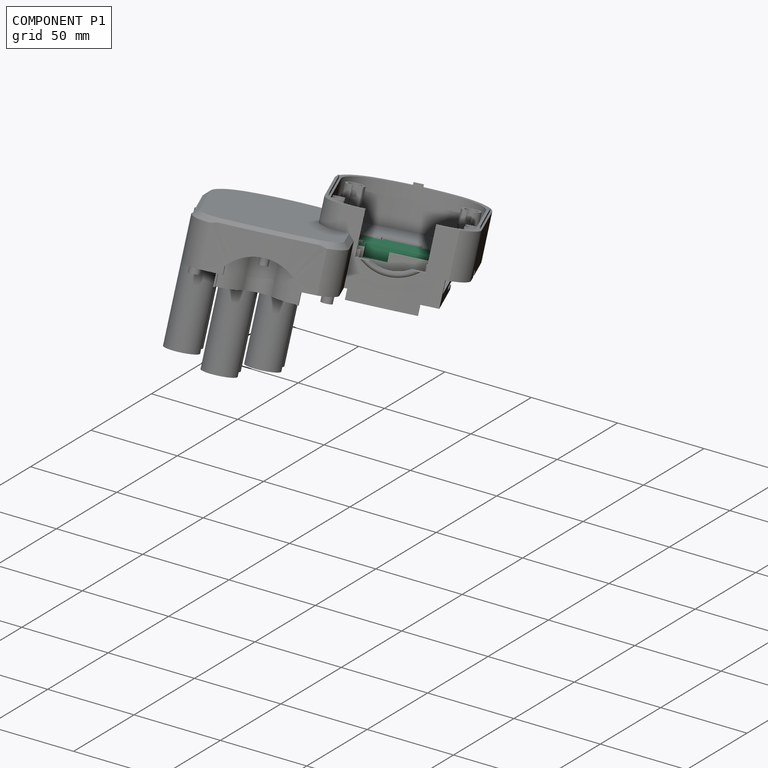
[diagram: component P1 — assembled]
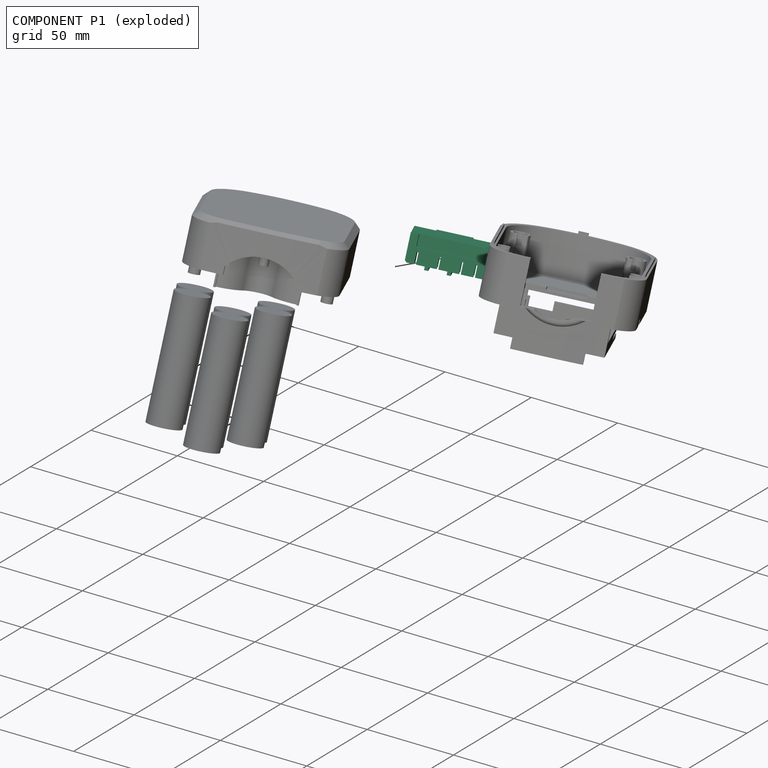
[diagram: component P1 — exploded]
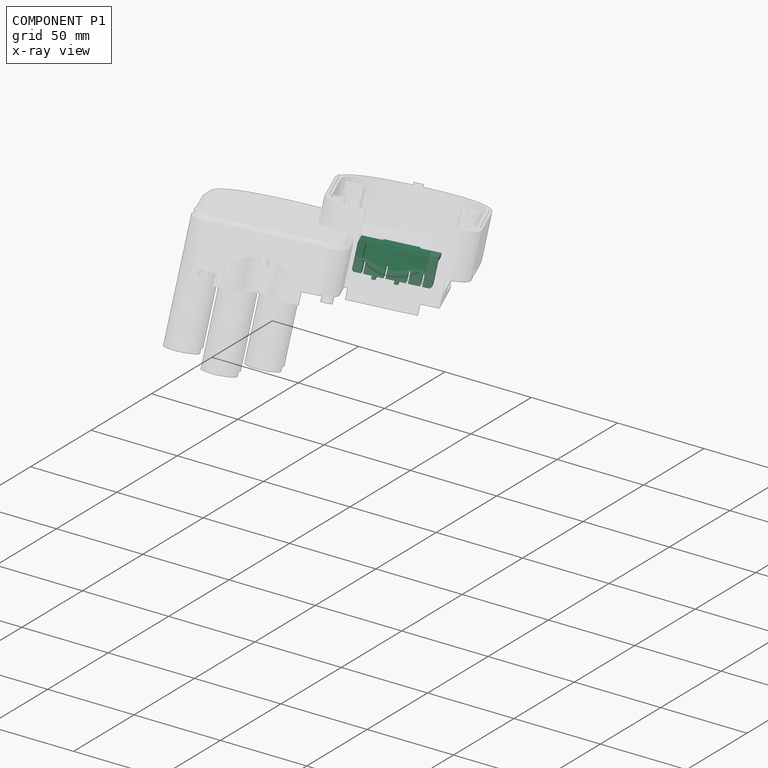
[diagram: component P1 — x-ray view]
COMPONENT P1 — recipe-attached ("ContactsHolder001", modeled in this document).
Held by: resting contact with P0 (derived edge); resting contact with P2 (derived edge).
Construction recipe (the document's own serialized feature program — sketch geometry with constraints, then the solid features built on it; lengths are millimeters unless a unit is written):

FEATURE [Sketcher::SketchObject] Sketch021
  ArcFitTolerance = 1e-06
  AttachmentSupport = -> [Origin014]
  ExternalTypes = [0]
  FullyConstrained = true
  MakeInternals = false
  MapMode = 5
  Placement = pos=(0,0,0) rot=(1,0,0;1.5708rad)
  sketch-geometry (4):
    g0: LineSegment StartX=0 StartY=0 StartZ=0 EndX=0 EndY=-14.5 EndZ=0
    g1: LineSegment StartX=0 StartY=-14.5 StartZ=0 EndX=39 EndY=-14.5 EndZ=0
    g2: LineSegment StartX=39 StartY=-14.5 StartZ=0 EndX=39 EndY=0 EndZ=0
    g3: LineSegment StartX=39 StartY=0 StartZ=0 EndX=0 EndY=0 EndZ=0
  constraints (11):
    c: Coincident(g0,g1)
    c: Coincident(g1,g2)
    c: Coincident(g2,g3)
    c: Coincident(g3,g0)
    c: Vertical(g0)
    c: Vertical(g2)
    c: Horizontal(g1)
    c: Horizontal(g3)
    c: Distance(g0,g2) = 39
    c: Distance(g1,g3) = 14.5
    c: Coincident(g0,g-1)
FEATURE [PartDesign::Pad] Pad013
  Direction = (0,-1,0)
  Length = 8
  Length2 = 10
  Profile = -> Sketch021
  ReferenceAxis = -> Sketch021 [N_Axis]
  Refine = true
  SideType = 0
  Suppressed = false
  Type = 0
  Type2 = 0
FEATURE [Sketcher::SketchObject] Sketch022
  ArcFitTolerance = 1e-06
  AttachmentSupport = -> [Pad013]
  ExternalGeometry = -> [Pad013]
  ExternalTypes = [0]
  FullyConstrained = true
  MakeInternals = false
  MapMode = 5
  Placement = pos=(0,-8,0) rot=(1,0,0;1.5708rad)
  sketch-geometry (11):
    g0: LineSegment StartX=0 StartY=-14.5 StartZ=0 EndX=0 EndY=-11.5 EndZ=0
    g1: LineSegment StartX=0 StartY=-11.5 StartZ=0 EndX=9.5 EndY=-11.5 EndZ=0
    g2: LineSegment StartX=9.5 StartY=-11.5 StartZ=0 EndX=9.5 EndY=3 EndZ=0
    g3: LineSegment StartX=9.5 StartY=3 StartZ=0 EndX=11.5 EndY=3 EndZ=0
    g4: LineSegment StartX=11.5 StartY=3 StartZ=0 EndX=11.5 EndY=-11.5 EndZ=0
    g5: LineSegment StartX=11.5 StartY=-11.5 StartZ=0 EndX=20.5 EndY=-11.5 EndZ=0
    g6: LineSegment StartX=20.5 StartY=-11.5 StartZ=0 EndX=20.5 EndY=3 EndZ=0
    g7: LineSegment StartX=20.5 StartY=3 StartZ=0 EndX=22.5 EndY=3 EndZ=0
    g8: LineSegment StartX=22.5 StartY=3 StartZ=0 EndX=22.5 EndY=-11.5 EndZ=0
    g9: LineSegment StartX=22.5 StartY=-11.5 StartZ=0 EndX=39 EndY=-11.5 EndZ=0
    g10: LineSegment StartX=39 StartY=-11.5 StartZ=0 EndX=39 EndY=-14.5 EndZ=0
  constraints (32):
    c: Coincident(g-4,g0)
    c: PointOnObject(g0,g-3)
    c: Coincident(g0,g1)
    c: Horizontal(g1)
    c: Coincident(g1,g2)
    c: Vertical(g2)
    c: Coincident(g2,g3)
    c: Coincident(g3,g4)
    c: Vertical(g4)
    c: Coincident(g4,g5)
    c: Horizontal(g5)
    c: Coincident(g5,g6)
    c: Vertical(g6)
    c: Coincident(g6,g7)
    c: Horizontal(g7)
    c: Coincident(g7,g8)
    c: Vertical(g8)
    c: Coincident(g8,g9)
    c: PointOnObject(g9,g-5)
    c: Horizontal(g9)
    c: Coincident(g9,g10)
    c: Coincident(g10,g-5)
    c: Horizontal(g3)
    c: Horizontal(g3,g6)
    c: Equal(g3,g7)
    c: DistanceX(g7,g7) = 2
    c: DistanceX(g5,g5) = 9
    c: DistanceX(g1,g1) = 9.5
    c: DistanceY(g4,g4) = 14.5
    c: Horizontal(g4,g1)
    c: Horizontal(g1,g8)
    c: DistanceY(g10,g10) = 3
FEATURE [PartDesign::Pad] Pad014
  BaseFeature = -> Pad013
  Direction = (0,-1,2e-16)
  Length = 14.5
  Length2 = 10
  Profile = -> Sketch022
  ReferenceAxis = -> Sketch022 [N_Axis]
  Refine = true
  SideType = 0
  Suppressed = false
  Type = 0
  Type2 = 0
FEATURE [Sketcher::SketchObject] Sketch023
  ArcFitTolerance = 1e-06
  AttachmentSupport = -> [Pad014]
  ExternalGeometry = -> [Pad014]
  ExternalTypes = [0]
  FullyConstrained = true
  MakeInternals = false
  MapMode = 5
  Placement = pos=(0,-22.5,0) rot=(1,0,0;1.5708rad)
  sketch-geometry (5):
    g0: LineSegment StartX=10.5 StartY=-14.5 StartZ=0 EndX=28.5 EndY=-14.5 EndZ=0
    g1: LineSegment StartX=28.5 StartY=-14.5 StartZ=0 EndX=28.5 EndY=-13 EndZ=0
    g2: LineSegment StartX=28.5 StartY=-13 StartZ=0 EndX=10.5 EndY=-13 EndZ=0
    g3: LineSegment StartX=10.5 StartY=-13 StartZ=0 EndX=10.5 EndY=-14.5 EndZ=0
    g4: GeomPoint X=19.5 Y=-14.5 Z=0
  constraints (12):
    c: Coincident(g0,g1)
    c: Coincident(g1,g2)
    c: Coincident(g2,g3)
    c: Coincident(g3,g0)
    c: Horizontal(g0)
    c: Horizontal(g2)
    c: Vertical(g1)
    c: Vertical(g3)
    c: Distance(g1,g3) = 18
    c: Distance(g0,g2) = 1.5
    c: Symmetric(g0,g0,g4)
    c: Symmetric(g-14,g-14,g4)
FEATURE [PartDesign::Pad] Pad015
  BaseFeature = -> Pad014
  Direction = (0,-1,2e-16)
  Length = 3.25
  Length2 = 10
  Profile = -> Sketch023
  ReferenceAxis = -> Sketch023 [N_Axis]
  Refine = true
  SideType = 0
  Suppressed = false
  Type = 0
  Type2 = 0
FEATURE [Sketcher::SketchObject] Sketch024
  ArcFitTolerance = 1e-06
  AttachmentSupport = -> [Pad015]
  ExternalGeometry = -> [Pad015]
  ExternalTypes = [0]
  FullyConstrained = true
  MakeInternals = false
  MapMode = 5
  sketch-geometry (18):
    g0: LineSegment StartX=4.7 StartY=0 StartZ=0 EndX=4.7 EndY=-8 EndZ=0
    g1: LineSegment StartX=4.7 StartY=-8 StartZ=0 EndX=5.6 EndY=-8 EndZ=0
    g2: LineSegment StartX=5.6 StartY=-8 StartZ=0 EndX=5.6 EndY=0 EndZ=0
    g3: LineSegment StartX=5.6 StartY=0 StartZ=0 EndX=4.7 EndY=0 EndZ=0
    g4: LineSegment StartX=15.6 StartY=0 StartZ=0 EndX=15.6 EndY=-8 EndZ=0
    g5: LineSegment StartX=15.6 StartY=-8 StartZ=0 EndX=16.5 EndY=-8 EndZ=0
    g6: LineSegment StartX=16.5 StartY=-8 StartZ=0 EndX=16.5 EndY=0 EndZ=0
    g7: LineSegment StartX=16.5 StartY=0 StartZ=0 EndX=15.6 EndY=0 EndZ=0
    g8: LineSegment StartX=26.5 StartY=0 StartZ=0 EndX=26.5 EndY=-8 EndZ=0
    g9: LineSegment StartX=26.5 StartY=-8 StartZ=0 EndX=27.4 EndY=-8 EndZ=0
    g10: LineSegment StartX=27.4 StartY=-8 StartZ=0 EndX=27.4 EndY=0 EndZ=0
    g11: LineSegment StartX=27.4 StartY=0 StartZ=0 EndX=26.5 EndY=0 EndZ=0
    g12: LineSegment StartX=33.4 StartY=0 StartZ=0 EndX=33.4 EndY=-8 EndZ=0
    g13: LineSegment StartX=33.4 StartY=-8 StartZ=0 EndX=34.3 EndY=-8 EndZ=0
    g14: LineSegment StartX=34.3 StartY=-8 StartZ=0 EndX=34.3 EndY=0 EndZ=0
    g15: LineSegment StartX=34.3 StartY=0 StartZ=0 EndX=33.4 EndY=0 EndZ=0
    g16: LineSegment [constr] StartX=4.7 StartY=0 StartZ=0 EndX=0 EndY=0 EndZ=0
    g17: LineSegment [constr] StartX=34.3 StartY=0 StartZ=0 EndX=39 EndY=0 EndZ=0
  constraints (52):
    c: Coincident(g0,g1)
    c: Coincident(g1,g2)
    c: Coincident(g2,g3)
    c: Coincident(g3,g0)
    c: Vertical(g0)
    c: Vertical(g2)
    c: Horizontal(g1)
    c: Horizontal(g3)
    c: PointOnObject(g0,g-5)
    c: PointOnObject(g1,g-10)
    c: Coincident(g4,g5)
    c: Coincident(g5,g6)
    c: Coincident(g6,g7)
    c: Coincident(g7,g4)
    c: Vertical(g4)
    c: Vertical(g6)
    c: Horizontal(g5)
    c: Horizontal(g7)
    c: PointOnObject(g4,g-5)
    c: PointOnObject(g5,g-8)
    c: Coincident(g8,g9)
    c: Coincident(g9,g10)
    c: Coincident(g10,g11)
    c: Coincident(g11,g8)
    c: Vertical(g8)
    c: Vertical(g10)
    c: Horizontal(g9)
    c: Horizontal(g11)
    c: PointOnObject(g8,g-5)
    c: PointOnObject(g9,g-6)
    c: Coincident(g12,g13)
    c: Coincident(g13,g14)
    c: Coincident(g14,g15)
    c: Coincident(g15,g12)
    c: Vertical(g12)
    c: Vertical(g14)
    c: Horizontal(g13)
    c: Horizontal(g15)
    c: PointOnObject(g12,g-5)
    c: PointOnObject(g13,g-6)
    c: Equal(g1,g5)
    c: Equal(g5,g9)
    c: Equal(g9,g13)
    c: DistanceX(g13,g13) = 0.9
    c: DistanceX(g9,g12) = 6
    c: DistanceX(g6,g8) = 10
    c: DistanceX(g2,g4) = 10
    c: Coincident(g16,g0)
    c: Coincident(g16,g-5)
    c: Coincident(g17,g14)
    c: Equal(g17,g16)
    c: Coincident(g17,g-5)
FEATURE [PartDesign::Pocket] Pocket009
  BaseFeature = -> Pad015
  Direction = (0,0,-1)
  Length = 6
  Length2 = 5
  Profile = -> Sketch024
  ReferenceAxis = -> Sketch024 [N_Axis]
  Refine = true
  SideType = 0
  Suppressed = false
  Type = 0
  Type2 = 0
FEATURE [Sketcher::SketchObject] Sketch025
  ArcFitTolerance = 1e-06
  AttachmentSupport = -> [Pocket009]
  ExternalGeometry = -> [Pocket009]
  ExternalTypes = [0,0,0,0,0]
  FullyConstrained = true
  MakeInternals = false
  MapMode = 5
  sketch-geometry (9):
    g0: LineSegment [constr] StartX=0 StartY=-2 StartZ=0 EndX=0 EndY=-6 EndZ=0
    g1: LineSegment [constr] StartX=0 StartY=-6 StartZ=0 EndX=39 EndY=-6 EndZ=0
    g2: LineSegment [constr] StartX=39 StartY=-6 StartZ=0 EndX=39 EndY=-2 EndZ=0
    g3: LineSegment [constr] StartX=39 StartY=-2 StartZ=0 EndX=0 EndY=-2 EndZ=0
    g4: GeomPoint X=0 Y=-4 Z=0
    g5: LineSegment StartX=4.7 StartY=-2 StartZ=0 EndX=4.7 EndY=-6 EndZ=0
    g6: LineSegment StartX=4.7 StartY=-6 StartZ=0 EndX=34.3 EndY=-6 EndZ=0
    g7: LineSegment StartX=34.3 StartY=-6 StartZ=0 EndX=34.3 EndY=-2 EndZ=0
    g8: LineSegment StartX=34.3 StartY=-2 StartZ=0 EndX=4.7 EndY=-2 EndZ=0
  constraints (24):
    c: Coincident(g0,g1)
    c: Coincident(g1,g2)
    c: Coincident(g2,g3)
    c: Coincident(g3,g0)
    c: Vertical(g0)
    c: Vertical(g2)
    c: Horizontal(g1)
    c: Horizontal(g3)
    c: PointOnObject(g1,g-22)
    c: Symmetric(g0,g0,g4)
    c: Symmetric(g-24,g-24,g4)
    c: Distance(g-23,g3) = 2
    c: Coincident(g5,g6)
    c: Coincident(g6,g7)
    c: Coincident(g7,g8)
    c: Coincident(g8,g5)
    c: Vertical(g5)
    c: Vertical(g7)
    c: Horizontal(g6)
    c: Horizontal(g8)
    c: PointOnObject(g5,g3)
    c: PointOnObject(g6,g1)
    c: PointOnObject(g6,g-20)
    c: PointOnObject(g5,g-26)
FEATURE [PartDesign::Pocket] Pocket010
  BaseFeature = -> Pocket009
  Direction = (0,0,-1)
  Length = 5
  Length2 = 5
  Profile = -> Sketch025
  ReferenceAxis = -> Sketch025 [N_Axis]
  Refine = true
  SideType = 0
  Suppressed = false
  Type = 3
  Type2 = 0
  UpToFace = -> Pocket009 [Face12]
FEATURE [Sketcher::SketchObject] Sketch026
  ArcFitTolerance = 1e-06
  AttachmentSupport = -> [Pocket010]
  ExternalGeometry = -> [Pocket010]
  ExternalTypes = [0,0,0,0]
  FullyConstrained = true
  MakeInternals = false
  MapMode = 5
  sketch-geometry (8):
    g0: LineSegment StartX=0 StartY=-2 StartZ=0 EndX=0 EndY=-6 EndZ=0
    g1: LineSegment StartX=0 StartY=-6 StartZ=0 EndX=2.6 EndY=-6 EndZ=0
    g2: LineSegment StartX=2.6 StartY=-6 StartZ=0 EndX=2.6 EndY=-2 EndZ=0
    g3: LineSegment StartX=2.6 StartY=-2 StartZ=0 EndX=0 EndY=-2 EndZ=0
    g4: LineSegment StartX=39 StartY=-2 StartZ=0 EndX=36.4 EndY=-2 EndZ=0
    g5: LineSegment StartX=36.4 StartY=-2 StartZ=0 EndX=36.4 EndY=-6 EndZ=0
    g6: LineSegment StartX=36.4 StartY=-6 StartZ=0 EndX=39 EndY=-6 EndZ=0
    g7: LineSegment StartX=39 StartY=-6 StartZ=0 EndX=39 EndY=-2 EndZ=0
  constraints (24):
    c: Coincident(g0,g1)
    c: Coincident(g1,g2)
    c: Coincident(g2,g3)
    c: Coincident(g3,g0)
    c: Vertical(g0)
    c: Vertical(g2)
    c: Horizontal(g1)
    c: Horizontal(g3)
    c: PointOnObject(g0,g-4)
    c: Horizontal(g2,g-23)
    c: Horizontal(g1,g-28)
    c: DistanceX(g3,g3) = 2.6
    c: Coincident(g4,g5)
    c: Coincident(g5,g6)
    c: Coincident(g6,g7)
    c: Coincident(g7,g4)
    c: Horizontal(g4)
    c: Horizontal(g6)
    c: Vertical(g5)
    c: Vertical(g7)
    c: PointOnObject(g4,g-10)
    c: Horizontal(g4,g2)
    c: Equal(g2,g5)
    c: Equal(g4,g3)
FEATURE [PartDesign::Pocket] Pocket011
  BaseFeature = -> Pocket010
  Direction = (0,0,-1)
  Length = 5
  Length2 = 5
  Profile = -> Sketch026
  ReferenceAxis = -> Sketch026 [N_Axis]
  Refine = true
  SideType = 0
  Suppressed = false
  Type = 1
  Type2 = 0
FEATURE [PartDesign::Chamfer] Chamfer002
  Angle = 45
  Base = -> Pocket011 [Edge125,Edge129,Edge4,Edge8,Edge51,Edge104,Edge42,Edge137]
  BaseFeature = -> Pocket011
  ChamferType = 0
  FlipDirection = false
  Refine = true
  Size = 1
  Size2 = 1
  SupportTransform = false
  Suppressed = false
  UseAllEdges = false
FEATURE [Sketcher::SketchObject] Sketch030
  ArcFitTolerance = 1e-06
  AttachmentSupport = -> [Chamfer002]
  ExternalGeometry = -> [Chamfer002]
  ExternalTypes = [0]
  FullyConstrained = true
  MakeInternals = false
  MapMode = 5
  Placement = pos=(0,-4.2e-15,-14.5) rot=(1,0,0;3.14159rad)
  sketch-geometry (4):
    g0: LineSegment StartX=35 StartY=-9e-16 StartZ=0 EndX=35 EndY=3 EndZ=0
    g1: LineSegment StartX=35 StartY=3 StartZ=0 EndX=4 EndY=3 EndZ=0
    g2: LineSegment StartX=4 StartY=3 StartZ=0 EndX=4 EndY=-9e-16 EndZ=0
    g3: LineSegment StartX=4 StartY=-9e-16 StartZ=0 EndX=35 EndY=-9e-16 EndZ=0
  constraints (12):
    c: Coincident(g0,g1)
    c: Coincident(g1,g2)
    c: Coincident(g2,g3)
    c: Coincident(g3,g0)
    c: Vertical(g0)
    c: Vertical(g2)
    c: Horizontal(g1)
    c: Horizontal(g3)
    c: PointOnObject(g0,g-18)
    c: Distance(g0,g0) = 3
    c: DistanceX(g0,g-18) = 4
    c: Distance(g2,g-18) = 4
FEATURE [PartDesign::Pocket] Pocket013
  BaseFeature = -> Chamfer002
  Direction = (0,0,1)
  Length = 4.5
  Length2 = 5
  Offset = 8.3
  Profile = -> Sketch030
  ReferenceAxis = -> Sketch030 [N_Axis]
  Refine = true
  SideType = 0
  Suppressed = false
  Type = 3
  Type2 = 0
  UpToFace = -> Chamfer002 [Face31]
FEATURE [Sketcher::SketchObject] Sketch031
  ArcFitTolerance = 1e-06
  AttachmentSupport = -> [Pocket013]
  ExternalGeometry = -> [Pocket013]
  ExternalTypes = [0]
  FullyConstrained = true
  MakeInternals = false
  MapMode = 5
  Placement = pos=(0,-1.8e-15,-8.3) rot=(1,0,0;3.14159rad)
  sketch-geometry (4):
    g0: LineSegment StartX=4 StartY=3 StartZ=0 EndX=4 EndY=1.5 EndZ=0
    g1: LineSegment StartX=4 StartY=1.5 StartZ=0 EndX=35 EndY=1.5 EndZ=0
    g2: LineSegment StartX=35 StartY=1.5 StartZ=0 EndX=35 EndY=3 EndZ=0
    g3: LineSegment StartX=35 StartY=3 StartZ=0 EndX=4 EndY=3 EndZ=0
  constraints (10):
    c: Coincident(g0,g1)
    c: Coincident(g1,g2)
    c: Coincident(g2,g3)
    c: Coincident(g3,g0)
    c: Vertical(g0)
    c: Vertical(g2)
    c: Horizontal(g1)
    c: Horizontal(g3)
    c: Coincident(g0,g-6)
    c: Symmetric(g-3,g-3,g1)
FEATURE [PartDesign::Pocket] Pocket014
  BaseFeature = -> Pocket013
  Direction = (0,0,1)
  Length = 0.5
  Length2 = 5
  Profile = -> Sketch031
  ReferenceAxis = -> Sketch031 [N_Axis]
  Refine = true
  SideType = 0
  Suppressed = false
  Type = 0
  Type2 = 0
FEATURE [PartDesign::Body] Body006  label="ContactsHolder"
  AllowCompound = false
  Group = -> [Sketch021,Pad013,Sketch022,Pad014,Sketch023,Pad015,Sketch024,Pocket009,Sketch025,Pocket010,Sketch026,Pocket011,Chamfer002,Sketch030,Pocket013,Sketch031,Pocket014]
  Origin = -> Origin014
  Placement = pos=(-19.5,42.5,-29.5) rot=(1,0,0;3.14159rad)
  Tip = -> Pocket014
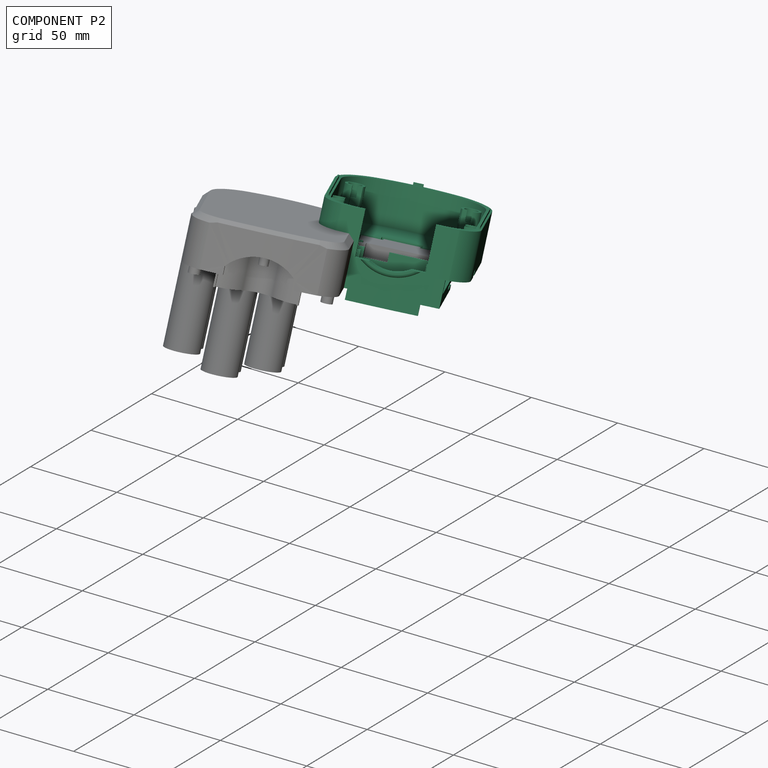
[diagram: component P2 — assembled]
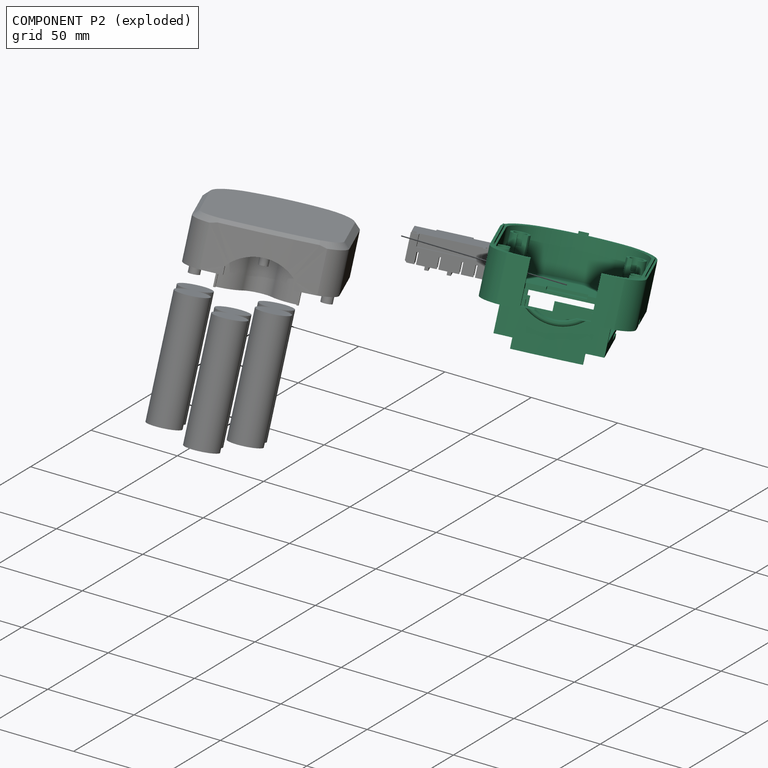
[diagram: component P2 — exploded]
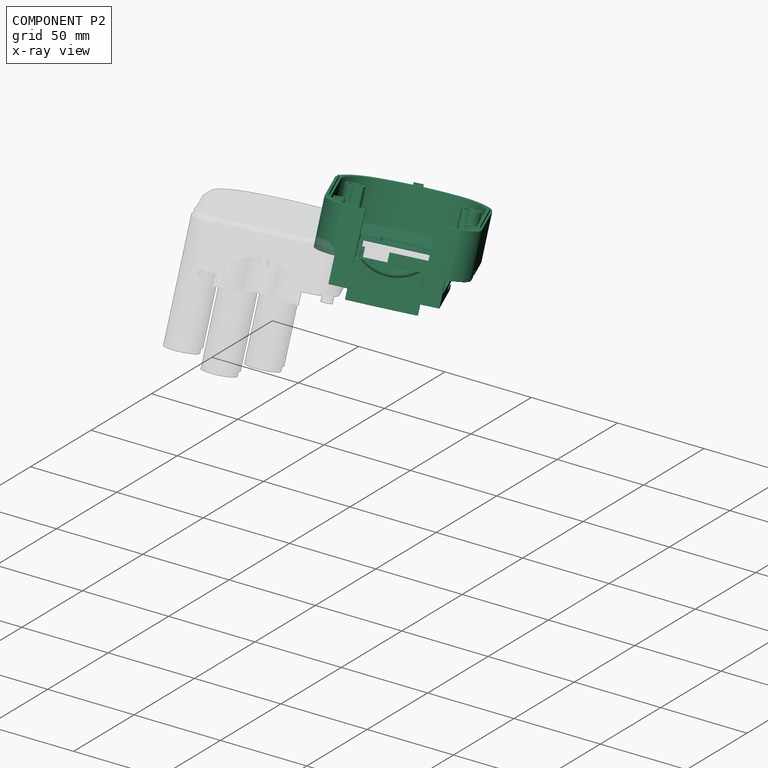
[diagram: component P2 — x-ray view]
COMPONENT P2 — recipe-attached ("Top001", modeled in this document).
Held by: resting contact with P0 (derived edge); resting contact with P1 (derived edge); resting contact with P3 (derived edge).
Construction recipe (the document's own serialized feature program — sketch geometry with constraints, then the solid features built on it; lengths are millimeters unless a unit is written):

FEATURE [PartDesign::SubShapeBinder] Binder
  BindCopyOnChange = 0
  BindMode = 0
  ClaimChildren = false
  Context = -> Body005 [Pad006.Binder.]
  Fuse = false
  MakeFace = true
  OffsetFill = false
  OffsetIntersection = false
  OffsetJoinType = 0
  OffsetOpenResult = false
  PartialLoad = false
  Refine = true
  Relative = true
  Support = -> [Body001[Fillet001.Face44,Fillet001.Face45,Fillet001.Face52,Fillet001.Face53,Fillet001.Face54]]
  _Version = 2
FEATURE [PartDesign::Pad] Pad006
  Direction = (0,0,-1)
  Length = 20
  Length2 = 10
  Profile = -> Binder [Face1]
  Refine = true
  SideType = 0
  Suppressed = false
  Type = 0
  Type2 = 0
FEATURE [Sketcher::SketchObject] Sketch011
  ArcFitTolerance = 1e-06
  AttachmentSupport = -> [Pad006]
  ExternalGeometry = -> [Pad006]
  ExternalTypes = [0]
  FullyConstrained = false
  MakeInternals = false
  MapMode = 5
  Placement = pos=(0,0,12) rot=(0,0,1;0rad)
  sketch-geometry (8):
    g0: LineSegment [constr] StartX=-37.1708 StartY=76.7716 StartZ=0 EndX=-37.1708 EndY=19.0291 EndZ=0
    g1: LineSegment [constr] StartX=-37.1708 StartY=19.0291 StartZ=0 EndX=-36.4564 EndY=19.0291 EndZ=0
    g2: LineSegment [constr] StartX=-36.4564 StartY=19.0291 StartZ=0 EndX=-36.4564 EndY=76.7716 EndZ=0
    g3: LineSegment [constr] StartX=-36.4564 StartY=76.7716 StartZ=0 EndX=-37.1708 EndY=76.7716 EndZ=0
    g4: GeomPoint X=-36.8136 Y=19.0291 Z=0
    g5: GeomPoint X=-36.75 Y=18.6683 Z=0
    g6: GeomPoint X=-36.125 Y=47.8342 Z=0
    g7: GeomPoint X=-36.4564 Y=47.9004 Z=0
  constraints (12):
    c: Coincident(g0,g1)
    c: Coincident(g1,g2)
    c: Coincident(g2,g3)
    c: Coincident(g3,g0)
    c: Vertical(g0)
    c: Vertical(g2)
    c: Horizontal(g1)
    c: Horizontal(g3)
    c: Symmetric(g1,g1,g4)
    c: Symmetric(g-32,g-32,g5)
    c: Symmetric(g-33,g-33,g6)
    c: Symmetric(g2,g2,g7)
FEATURE [PartDesign::Pad] Pad007
  BaseFeature = -> Pad006
  Direction = (0,0,1)
  Length = 2
  Length2 = 10
  Profile = -> Sketch011
  ReferenceAxis = -> Sketch011 [N_Axis]
  Refine = true
  SideType = 1
  Suppressed = false
  Type = 0
  Type2 = 3
  UpToFace2 = -> Pad006 [Face39]
FEATURE [Sketcher::SketchObject] Sketch012
  ArcFitTolerance = 1e-06
  AttachmentSupport = -> [Pad007]
  ExternalGeometry = -> [Pad007]
  ExternalTypes = [0]
  FullyConstrained = true
  MakeInternals = false
  MapMode = 5
  Placement = pos=(0,0,-8) rot=(1,0,0;3.14159rad)
  sketch-geometry (4):
    g0: ArcOfCircle CenterX=12.045 CenterY=-77 CenterZ=0 NormalX=0 NormalY=0 NormalZ=1 AngleXU=0 Radius=23.205 StartAngle=5.06542 EndAngle=6.13136
    g1: ArcOfCircle CenterX=-12.045 CenterY=-77 CenterZ=0 NormalX=0 NormalY=0 NormalZ=1 AngleXU=0 Radius=23.205 StartAngle=3.29342 EndAngle=4.35935
    g2: LineSegment StartX=-34.9831 StartY=-80.5097 StartZ=0 EndX=34.9831 EndY=-80.5097 EndZ=0
    g3: LineSegment StartX=20.0681 StartY=-98.7739 StartZ=0 EndX=-20.0681 EndY=-98.7739 EndZ=0
  constraints (10):
    c: Coincident(g0,g-14)
    c: Coincident(g0,g-10)
    c: Coincident(g1,g-20)
    c: Coincident(g1,g-20)
    c: PointOnObject(g1,g-15)
    c: PointOnObject(g0,g-15)
    c: Coincident(g1,g2)
    c: Coincident(g0,g3)
    c: Coincident(g1,g3)
    c: Coincident(g0,g2)
FEATURE [PartDesign::Pocket] Pocket005
  BaseFeature = -> Pad007
  Direction = (0,0,1)
  Length = 5
  Length2 = 5
  Profile = -> Sketch012
  ReferenceAxis = -> Sketch012 [N_Axis]
  Refine = true
  SideType = 0
  Suppressed = false
  Type = 1
  Type2 = 0
FEATURE [Sketcher::SketchObject] Sketch013
  ArcFitTolerance = 1e-06
  AttachmentSupport = -> [Pocket005]
  ExternalGeometry = -> [Pocket005]
  ExternalTypes = [0]
  FullyConstrained = true
  MakeInternals = false
  MapMode = 5
  Placement = pos=(0,0,-8) rot=(1,0,0;3.14159rad)
  sketch-geometry (4):
    g0: LineSegment StartX=-17.2 StartY=-1.48787 StartZ=0 EndX=-17.2 EndY=-4.16832 EndZ=0
    g1: LineSegment StartX=-17.2 StartY=-4.16832 StartZ=0 EndX=17.2 EndY=-4.16832 EndZ=0
    g2: LineSegment StartX=17.2 StartY=-4.16832 StartZ=0 EndX=17.2 EndY=-1.48787 EndZ=0
    g3: ArcOfCircle CenterX=7.7162e-12 CenterY=-260.918 CenterZ=0 NormalX=0 NormalY=0 NormalZ=1 AngleXU=0 Radius=260 StartAngle=1.50459 EndAngle=1.637
  constraints (10):
    c: Coincident(g0,g1)
    c: Coincident(g1,g2)
    c: Vertical(g0)
    c: Horizontal(g1)
    c: Coincident(g0,g-10)
    c: Coincident(g1,g-24)
    c: Coincident(g3,g2)
    c: Coincident(g0,g3)
    c: Coincident(g-25,g2)
    c: Coincident(g-25,g3)
FEATURE [PartDesign::Pad] Pad008
  BaseFeature = -> Pocket005
  Direction = (0,0,-1)
  Length = 10
  Length2 = 10
  Offset = -17
  Profile = -> Sketch013
  ReferenceAxis = -> Sketch013 [N_Axis]
  Refine = true
  SideType = 0
  Suppressed = false
  Type = 3
  Type2 = 0
  UpToFace = -> Pocket005 [Face4]
FEATURE [Sketcher::SketchObject] Sketch014
  ArcFitTolerance = 1e-06
  AttachmentSupport = -> [Pad008]
  ExternalGeometry = -> [Pad008]
  ExternalTypes = [0]
  FullyConstrained = true
  MakeInternals = false
  MapMode = 5
  Placement = pos=(0,0,-8) rot=(1,0,0;3.14159rad)
FEATURE [PartDesign::Pad] Pad009
  BaseFeature = -> Pad008
  Direction = (0,0,-1)
  Length = 3
  Length2 = 10
  Profile = -> Sketch014
  ReferenceAxis = -> Sketch014 [N_Axis]
  Refine = true
  Reversed = true
  SideType = 0
  Suppressed = false
  Type = 0
  Type2 = 0
FEATURE [Sketcher::SketchObject] Sketch015
  ArcFitTolerance = 1e-06
  AttachmentSupport = -> [Pad009]
  ExternalGeometry = -> [Binder,Pad009]
  ExternalTypes = [0,0,0,0,0,0,0,0]
  FullyConstrained = true
  MakeInternals = false
  MapMode = 5
  Placement = pos=(0,0,-8) rot=(1,0,0;3.14159rad)
  sketch-geometry (16):
    g0: ArcOfCircle CenterX=-28.25 CenterY=-81.5097 CenterZ=0 NormalX=0 NormalY=0 NormalZ=1 AngleXU=0 Radius=3 StartAngle=4.71239 EndAngle=7.85398
    g1: ArcOfCircle CenterX=28.25 CenterY=-81.5097 CenterZ=0 NormalX=0 NormalY=0 NormalZ=1 AngleXU=0 Radius=3 StartAngle=1.5708 EndAngle=4.71239
    g2: ArcOfCircle CenterX=11.375 CenterY=-77 CenterZ=0 NormalX=0 NormalY=0 NormalZ=1 AngleXU=0 Radius=26.875 StartAngle=5.99999 EndAngle=6.22698
    g3: ArcOfCircle CenterX=-11.375 CenterY=-77 CenterZ=0 NormalX=0 NormalY=0 NormalZ=1 AngleXU=0 Radius=26.875 StartAngle=3.1978 EndAngle=3.42479
    g4: LineSegment StartX=-28.25 StartY=-78.5097 StartZ=0 EndX=-38.2076 EndY=-78.5097 EndZ=0
    g5: LineSegment StartX=-37.1795 StartY=-84.5097 StartZ=0 EndX=-28.25 EndY=-84.5097 EndZ=0
    g6: LineSegment StartX=28.25 StartY=-78.5097 StartZ=0 EndX=38.2076 EndY=-78.5097 EndZ=0
    g7: LineSegment StartX=37.1795 StartY=-84.5097 StartZ=0 EndX=28.25 EndY=-84.5097 EndZ=0
    g8: LineSegment StartX=32.25 StartY=-28.1683 StartZ=0 EndX=38.25 EndY=-28.1683 EndZ=0
    g9: LineSegment StartX=38.25 StartY=-28.1683 StartZ=0 EndX=38.25 EndY=-34.1683 EndZ=0
    g10: LineSegment StartX=38.25 StartY=-34.1683 StartZ=0 EndX=32.25 EndY=-34.1683 EndZ=0
    g11: ArcOfCircle CenterX=32.25 CenterY=-31.1683 CenterZ=0 NormalX=0 NormalY=0 NormalZ=1 AngleXU=0 Radius=3 StartAngle=1.5708 EndAngle=4.71239
    g12: ArcOfCircle CenterX=-32.25 CenterY=-31.1683 CenterZ=0 NormalX=0 NormalY=0 NormalZ=1 AngleXU=0 Radius=3 StartAngle=4.71239 EndAngle=7.85398
    g13: LineSegment StartX=-32.25 StartY=-28.1683 StartZ=0 EndX=-38.25 EndY=-28.1683 EndZ=0
    g14: LineSegment StartX=-38.25 StartY=-28.1683 StartZ=0 EndX=-38.25 EndY=-34.1683 EndZ=0
    g15: LineSegment StartX=-38.25 StartY=-34.1683 StartZ=0 EndX=-32.25 EndY=-34.1683 EndZ=0
  constraints (41):
    c: Coincident(g0,g-9)
    c: PointOnObject(g0,g-6)
    c: Coincident(g2,g-19)
    c: PointOnObject(g2,g-19)
    c: Coincident(g3,g-18)
    c: PointOnObject(g3,g-18)
    c: Horizontal(g3,g0)
    c: Horizontal(g0,g3)
    c: Horizontal(g1,g2)
    c: Horizontal(g2,g1)
    c: Tangent(g0,g4) = -1.5708
    c: Coincident(g3,g4)
    c: Coincident(g5,g3)
    c: Tangent(g5,g0) = -1.5708
    c: Coincident(g6,g2)
    c: Coincident(g7,g2)
    c: Tangent(g7,g1) = 1.5708
    c: Tangent(g6,g1) = 1.5708
    c: PointOnObject(g1,g-12)
    c: Coincident(g1,g-13)
    c: PointOnObject(g8,g-14)
    c: PointOnObject(g8,g-17)
    c: Horizontal(g8)
    c: Coincident(g8,g9)
    c: PointOnObject(g9,g-17)
    c: Coincident(g9,g10)
    c: Tangent(g10,g11) = 1.5708
    c: Tangent(g11,g8) = 1.5708
    c: Coincident(g-15,g11)
    c: Horizontal(g10)
    c: Coincident(g12,g-5)
    c: PointOnObject(g12,g-3)
    c: Tangent(g12,g13) = -1.5708
    c: Coincident(g13,g14)
    c: PointOnObject(g14,g-16)
    c: Vertical(g14)
    c: Coincident(g14,g15)
    c: Coincident(g15,g12)
    c: Horizontal(g15)
    c: Vertical(g12,g12)
    c: Horizontal(g13)
FEATURE [PartDesign::Pocket] Pocket006
  BaseFeature = -> Pad009
  Direction = (0,0,1)
  Length = 3
  Length2 = 5
  Profile = -> Sketch015
  ReferenceAxis = -> Sketch015 [N_Axis]
  Refine = true
  SideType = 0
  Suppressed = false
  Type = 0
  Type2 = 0
FEATURE [Sketcher::SketchObject] Sketch016
  ArcFitTolerance = 1e-06
  AttachmentSupport = -> [Pocket006]
  ExternalGeometry = -> [Pocket006]
  ExternalTypes = [0,0]
  FullyConstrained = true
  MakeInternals = false
  MapMode = 5
  Placement = pos=(0,0,-8) rot=(1,0,0;3.14159rad)
  sketch-geometry (18):
    g0: LineSegment StartX=-22 StartY=-1.85076 StartZ=0 EndX=-22 EndY=-65.1679 EndZ=0
    g1: LineSegment StartX=-22 StartY=-65.1679 StartZ=0 EndX=-20 EndY=-65.1679 EndZ=0
    g2: LineSegment StartX=-20 StartY=-65.1679 StartZ=0 EndX=-20 EndY=-47.1679 EndZ=0
    g3: LineSegment StartX=-20 StartY=-47.1679 StartZ=0 EndX=-17.25 EndY=-47.1679 EndZ=0
    g4: LineSegment StartX=-17.25 StartY=-47.1679 StartZ=0 EndX=-17.25 EndY=-44.6679 EndZ=0
    g5: LineSegment StartX=-17.25 StartY=-44.6679 StartZ=0 EndX=-20 EndY=-44.6679 EndZ=0
    g6: LineSegment StartX=-20 StartY=-44.6679 StartZ=0 EndX=-20 EndY=-29.6679 EndZ=0
    g7: LineSegment StartX=-20 StartY=-29.6679 StartZ=0 EndX=0 EndY=-29.6679 EndZ=0
    g8: LineSegment StartX=0 StartY=-29.6679 StartZ=0 EndX=0 EndY=-27.6679 EndZ=0
    g9: LineSegment StartX=0 StartY=-27.6679 StartZ=0 EndX=-20 EndY=-27.6679 EndZ=0
    g10: LineSegment StartX=-20 StartY=-27.6679 StartZ=0 EndX=-20 EndY=-18.6679 EndZ=0
    g11: LineSegment StartX=-20 StartY=-18.6679 StartZ=0 EndX=-17 EndY=-18.6679 EndZ=0
    g12: LineSegment StartX=-17 StartY=-18.6679 StartZ=0 EndX=-17 EndY=-16.1679 EndZ=0
    g13: LineSegment StartX=-17 StartY=-16.1679 StartZ=0 EndX=-20 EndY=-16.1679 EndZ=0
    g14: LineSegment StartX=-20 StartY=-16.1679 StartZ=0 EndX=-20 EndY=-4.16787 EndZ=0
    g15: LineSegment StartX=-20 StartY=-4.16787 StartZ=0 EndX=-3.6e-15 EndY=-4.16787 EndZ=0
    g16: LineSegment StartX=-3.9e-15 StartY=-4.16787 StartZ=0 EndX=-3.9e-15 EndY=-0.918319 EndZ=0
    g17: ArcOfCircle CenterX=7.7162e-12 CenterY=-260.918 CenterZ=0 NormalX=0 NormalY=0 NormalZ=1 AngleXU=0 Radius=260 StartAngle=1.5708 EndAngle=1.65551
  constraints (54):
    c: Vertical(g0)
    c: Coincident(g0,g1)
    c: Horizontal(g1)
    c: Coincident(g1,g2)
    c: Vertical(g2)
    c: Coincident(g2,g3)
    c: Horizontal(g3)
    c: Coincident(g3,g4)
    c: Vertical(g4)
    c: Coincident(g4,g5)
    c: Horizontal(g5)
    c: Coincident(g5,g6)
    c: Vertical(g6)
    c: Coincident(g6,g7)
    c: PointOnObject(g7,g-2)
    c: Horizontal(g7)
    c: Coincident(g7,g8)
    c: PointOnObject(g8,g-2)
    c: Coincident(g8,g9)
    c: Horizontal(g9)
    c: Coincident(g9,g10)
    c: Vertical(g10)
    c: Coincident(g10,g11)
    c: Horizontal(g11)
    c: Coincident(g11,g12)
    c: Vertical(g12)
    c: Coincident(g12,g13)
    c: Horizontal(g13)
    c: Vertical(g14)
    c: Coincident(g14,g15)
    c: PointOnObject(g15,g-2)
    c: Horizontal(g15)
    c: Coincident(g15,g16)
    c: PointOnObject(g16,g-4)
    c: Vertical(g16)
    c: Coincident(g17,g-4)
    c: Coincident(g17,g16)
    c: Coincident(g0,g17)
    c: DistanceY(g14,g-4) = 2.68
    c: Vertical(g10,g13)
    c: Vertical(g13,g6)
    c: Vertical(g2,g5)
    c: Distance(g1,g1) = 2
    c: DistanceY(g8,g8) = 2
    c: DistanceY(g4,g4) = 2.5
    c: DistanceY(g12,g12) = 2.5
    c: Distance(g5,g5) = 2.75
    c: Distance(g13,g13) = 3
    c: Coincident(g14,g13)
    c: Distance(g1,g3) = 18
    c: Distance(g7,g5) = 15
    c: DistanceY(g10,g10) = 9
    c: DistanceY(g14,g14) = 12
    c: Distance(g-2,g14) = 20
FEATURE [PartDesign::Pad] Pad010
  BaseFeature = -> Pocket006
  Direction = (0,0,-1)
  Length = 12
  Length2 = 10
  Profile = -> Sketch016
  ReferenceAxis = -> Sketch016 [N_Axis]
  Refine = true
  SideType = 0
  Suppressed = false
  Type = 0
  Type2 = 0
FEATURE [PartDesign::Mirrored] Mirrored001
  BaseFeature = -> Pad010
  MirrorPlane = -> Sketch016 [V_Axis]
  Originals = -> [Pad010]
  Refine = true
  Suppressed = false
  TransformMode = 0
FEATURE [Sketcher::SketchObject] Sketch017
  ArcFitTolerance = 1e-06
  AttachmentSupport = -> [Mirrored001]
  ExternalGeometry = -> [Mirrored001]
  ExternalTypes = [0,0,0,0,0,0]
  FullyConstrained = true
  MakeInternals = false
  MapMode = 5
  Placement = pos=(0,0,-20) rot=(1,0,0;3.14159rad)
  sketch-geometry (8):
    g0: ArcOfCircle CenterX=-7.7162e-12 CenterY=-260.918 CenterZ=0 NormalX=0 NormalY=0 NormalZ=1 AngleXU=0 Radius=260 StartAngle=1.48608 EndAngle=1.65551
    g1: LineSegment StartX=-22 StartY=-1.85076 StartZ=0 EndX=-22 EndY=-65.1679 EndZ=0
    g2: LineSegment StartX=-22 StartY=-65.1679 StartZ=0 EndX=-20 EndY=-65.1679 EndZ=0
    g3: LineSegment StartX=-20 StartY=-65.1679 StartZ=0 EndX=-20 EndY=-50.1679 EndZ=0
    g4: LineSegment StartX=-20 StartY=-50.1679 StartZ=0 EndX=20 EndY=-50.1679 EndZ=0
    g5: LineSegment StartX=20 StartY=-50.1679 StartZ=0 EndX=20 EndY=-65.1679 EndZ=0
    g6: LineSegment StartX=20 StartY=-65.1679 StartZ=0 EndX=22 EndY=-65.1679 EndZ=0
    g7: LineSegment StartX=22 StartY=-65.1679 StartZ=0 EndX=22 EndY=-1.85076 EndZ=0
  constraints (19):
    c: Coincident(g0,g-4)
    c: Coincident(g0,g-6)
    c: Coincident(g0,g1)
    c: Coincident(g1,g-6)
    c: Coincident(g1,g2)
    c: Coincident(g2,g-7)
    c: Coincident(g2,g3)
    c: PointOnObject(g3,g-7)
    c: Coincident(g3,g4)
    c: PointOnObject(g4,g-8)
    c: Horizontal(g4)
    c: Coincident(g4,g5)
    c: Coincident(g5,g-8)
    c: Coincident(g5,g6)
    c: Coincident(g6,g-5)
    c: Coincident(g6,g7)
    c: Coincident(g7,g0)
    c: Vertical(g7)
    c: DistanceY(g3,g3) = 15
FEATURE [PartDesign::Pad] Pad011
  BaseFeature = -> Mirrored001
  Direction = (0,0,-1)
  Length = 2
  Length2 = 10
  Profile = -> Sketch017
  ReferenceAxis = -> Sketch017 [N_Axis]
  Refine = true
  SideType = 0
  Suppressed = false
  Type = 0
  Type2 = 0
FEATURE [Sketcher::SketchObject] Sketch018
  ArcFitTolerance = 1e-06
  AttachmentSupport = -> [Pad011]
  ExternalGeometry = -> [Pad011]
  ExternalTypes = [0]
  FullyConstrained = true
  MakeInternals = false
  MapMode = 5
  Placement = pos=(-22,0,1.26e-14) rot=(0.57735,-0.57735,-0.57735;2.0944rad)
  sketch-geometry (10):
    g0: LineSegment StartX=-1.85076 StartY=-8 StartZ=0 EndX=-1.85076 EndY=-22 EndZ=0
    g1: LineSegment StartX=-1.85076 StartY=-22 StartZ=0 EndX=-65.1679 EndY=-22 EndZ=0
    g2: LineSegment StartX=-65.1679 StartY=-22 StartZ=0 EndX=-65.1679 EndY=-19.5 EndZ=0
    g3: LineSegment StartX=-65.1679 StartY=-19.5 StartZ=0 EndX=-45.1679 EndY=-19.5 EndZ=0
    g4: LineSegment StartX=-45.1679 StartY=-19.5 StartZ=0 EndX=-45.1679 EndY=-17.5 EndZ=0
    g5: LineSegment StartX=-45.1679 StartY=-17.5 StartZ=0 EndX=-65.1679 EndY=-17.5 EndZ=0
    g6: LineSegment StartX=-65.1679 StartY=-17.5 StartZ=0 EndX=-65.1679 EndY=-15 EndZ=0
    g7: LineSegment StartX=-65.1679 StartY=-15 StartZ=0 EndX=-4.85076 EndY=-15 EndZ=0
    g8: LineSegment StartX=-4.85076 StartY=-15 StartZ=0 EndX=-4.85076 EndY=-8 EndZ=0
    g9: LineSegment StartX=-4.85076 StartY=-8 StartZ=0 EndX=-1.85076 EndY=-8 EndZ=0
  constraints (27):
    c: Coincident(g-6,g0)
    c: Coincident(g0,g-6)
    c: Coincident(g0,g1)
    c: Coincident(g1,g-5)
    c: Coincident(g1,g2)
    c: PointOnObject(g2,g-4)
    c: Coincident(g2,g3)
    c: Horizontal(g3)
    c: Coincident(g3,g4)
    c: Vertical(g4)
    c: Coincident(g4,g5)
    c: PointOnObject(g5,g-4)
    c: Horizontal(g5)
    c: Coincident(g5,g6)
    c: PointOnObject(g6,g-4)
    c: Coincident(g6,g7)
    c: Horizontal(g7)
    c: Coincident(g7,g8)
    c: PointOnObject(g8,g-3)
    c: Vertical(g8)
    c: Coincident(g8,g9)
    c: Coincident(g9,g0)
    c: Distance(g9,g9) = 3
    c: DistanceY(g4,g4) = 2
    c: Equal(g2,g6)
    c: Distance(g6,g1) = 7
    c: DistanceX(g5,g5) = 20
FEATURE [PartDesign::Pad] Pad012
  BaseFeature = -> Pad011
  Direction = (-1,0,0)
  Length = 5
  Length2 = 10
  Profile = -> Sketch018
  ReferenceAxis = -> Sketch018 [N_Axis]
  Refine = true
  SideType = 0
  Suppressed = false
  Type = 0
  Type2 = 0
FEATURE [PartDesign::Mirrored] Mirrored002
  BaseFeature = -> Pad012
  MirrorPlane = -> YZ_Plane006
  Originals = -> [Pad012]
  Refine = true
  Suppressed = false
  TransformMode = 0
FEATURE [Sketcher::SketchObject] Sketch019
  ArcFitTolerance = 1e-06
  AttachmentSupport = -> [Mirrored002]
  ExternalGeometry = -> [Mirrored002]
  ExternalTypes = [0,0,0,0]
  FullyConstrained = true
  MakeInternals = false
  MapMode = 5
  Placement = pos=(0,0,-5) rot=(0,0,1;0rad)
  sketch-geometry (1):
    g0: LineSegment StartX=20 StartY=65.1679 StartZ=0 EndX=-20 EndY=65.1679 EndZ=0
  constraints (2):
    c: Coincident(g0,g-22)
    c: Coincident(g0,g-19)
FEATURE [PartDesign::Pocket] Pocket007
  BaseFeature = -> Mirrored002
  Direction = (0,0,-1)
  Length = 5
  Length2 = 5
  Profile = -> Sketch019
  ReferenceAxis = -> Sketch019 [N_Axis]
  Refine = true
  SideType = 0
  Suppressed = false
  Type = 3
  Type2 = 0
  UpToFace = -> Mirrored002 [Face84]
FEATURE [Sketcher::SketchObject] Sketch020
  ArcFitTolerance = 1e-06
  AttachmentSupport = -> [Pocket007]
  ExternalGeometry = -> [Pocket007]
  ExternalTypes = [0]
  FullyConstrained = true
  MakeInternals = false
  MapMode = 5
  Placement = pos=(0,0,-5) rot=(0,0,1;0rad)
  sketch-geometry (4):
    g0: LineSegment StartX=-15 StartY=29.6679 StartZ=0 EndX=-15 EndY=27.6679 EndZ=0
    g1: LineSegment StartX=-15 StartY=27.6679 StartZ=0 EndX=-3 EndY=27.6679 EndZ=0
    g2: LineSegment StartX=-3 StartY=27.6679 StartZ=0 EndX=-3 EndY=29.6679 EndZ=0
    g3: LineSegment StartX=-3 StartY=29.6679 StartZ=0 EndX=-15 EndY=29.6679 EndZ=0
  constraints (13):
    c: Coincident(g0,g1)
    c: Coincident(g1,g2)
    c: Coincident(g2,g3)
    c: Coincident(g3,g0)
    c: Vertical(g0)
    c: Vertical(g2)
    c: Horizontal(g1)
    c: Horizontal(g3)
    c: PointOnObject(g0,g-45)
    c: PointOnObject(g1,g-33)
    c: DistanceX(g3,g3) = 12
    c: Distance(g-45,g0) = 5
    c: DistanceX(g-45,g-45) = 40
FEATURE [PartDesign::Pocket] Pocket008
  BaseFeature = -> Pocket007
  Direction = (0,0,-1)
  Length = 5
  Length2 = 5
  Profile = -> Sketch020
  ReferenceAxis = -> Sketch020 [N_Axis]
  Refine = true
  SideType = 0
  Suppressed = false
  Type = 0
  Type2 = 0
FEATURE [Sketcher::SketchObject] Sketch027
  ArcFitTolerance = 1e-06
  AttachmentSupport = -> [Pocket008]
  ExternalGeometry = -> [Pocket008]
  ExternalTypes = [0]
  FullyConstrained = true
  MakeInternals = false
  MapMode = 5
  Placement = pos=(0,0,-20) rot=(0,0,1;0rad)
  sketch-geometry (4):
    g0: LineSegment StartX=-20 StartY=36.1679 StartZ=0 EndX=-20 EndY=34.5679 EndZ=0
    g1: LineSegment StartX=-20 StartY=34.5679 StartZ=0 EndX=20 EndY=34.5679 EndZ=0
    g2: LineSegment StartX=20 StartY=34.5679 StartZ=0 EndX=20 EndY=36.1679 EndZ=0
    g3: LineSegment StartX=20 StartY=36.1679 StartZ=0 EndX=-20 EndY=36.1679 EndZ=0
  constraints (12):
    c: Coincident(g0,g1)
    c: Coincident(g1,g2)
    c: Coincident(g2,g3)
    c: Coincident(g3,g0)
    c: Vertical(g0)
    c: Vertical(g2)
    c: Horizontal(g1)
    c: Horizontal(g3)
    c: PointOnObject(g0,g-9)
    c: PointOnObject(g1,g-7)
    c: Distance(g-14,g3) = 14
    c: Distance(g2,g2) = 1.6
FEATURE [PartDesign::Pad] Pad016
  BaseFeature = -> Pocket008
  Direction = (0,0,1)
  Length = 8
  Length2 = 10
  Profile = -> Sketch027
  ReferenceAxis = -> Sketch027 [N_Axis]
  Refine = true
  SideType = 0
  Suppressed = false
  Type = 0
  Type2 = 0
FEATURE [PartDesign::SubShapeBinder] Binder001
  BindCopyOnChange = 0
  BindMode = 0
  ClaimChildren = false
  Context = -> Body005 [Binder001.]
  Fuse = false
  MakeFace = true
  OffsetFill = false
  OffsetIntersection = false
  OffsetJoinType = 0
  OffsetOpenResult = false
  PartialLoad = false
  Refine = true
  Relative = true
  Support = -> [Body001[Fillet001.Face47]]
  _Version = 2
FEATURE [Sketcher::SketchObject] Sketch028
  ArcFitTolerance = 1e-06
  AttachmentSupport = -> [Pad016]
  ExternalGeometry = -> [Pad016,Binder001]
  ExternalTypes = [0,0]
  FullyConstrained = true
  MakeInternals = false
  MapMode = 5
  Placement = pos=(0,0,-20) rot=(0,0,1;0rad)
  sketch-geometry (6):
    g0: LineSegment StartX=-20 StartY=4.16787 StartZ=0 EndX=-20 EndY=6.66787 EndZ=0
    g1: LineSegment StartX=-20 StartY=6.66787 StartZ=0 EndX=-15.5 EndY=7.41787 EndZ=0
    g2: LineSegment StartX=-15.5 StartY=7.41787 StartZ=0 EndX=-15.5 EndY=7.91787 EndZ=0
    g3: LineSegment StartX=-15.5 StartY=7.91787 StartZ=0 EndX=-20.5 EndY=7.16832 EndZ=0
    g4: LineSegment StartX=-20.5 StartY=7.16832 StartZ=0 EndX=-20.5 EndY=4.16832 EndZ=0
    g5: LineSegment StartX=-20.5 StartY=4.16832 StartZ=0 EndX=-20 EndY=4.16787 EndZ=0
  constraints (17):
    c: Coincident(g-10,g0)
    c: PointOnObject(g0,g-10)
    c: Coincident(g0,g1)
    c: Coincident(g1,g2)
    c: Vertical(g2)
    c: Coincident(g2,g3)
    c: Coincident(g3,g4)
    c: PointOnObject(g4,g-16)
    c: Vertical(g4)
    c: Coincident(g4,g5)
    c: Coincident(g5,g0)
    c: DistanceY(g2,g2) = 0.5
    c: DistanceY(g0,g0) = 2.5
    c: Distance(g1,g-9) = 3.25
    c: DistanceX(g5,g5) = 0.5
    c: DistanceX(g3,g2) = 5
    c: DistanceY(g4,g4) = 3
FEATURE [PartDesign::Pad] Pad017
  BaseFeature = -> Pad016
  Direction = (0,0,1)
  Length = 21
  Length2 = 10
  Profile = -> Sketch028
  ReferenceAxis = -> Sketch028 [N_Axis]
  Refine = true
  SideType = 0
  Suppressed = false
  Type = 0
  Type2 = 0
FEATURE [PartDesign::Mirrored] Mirrored003
  BaseFeature = -> Pad017
  MirrorPlane = -> Sketch028 [V_Axis]
  Originals = -> [Pad017]
  Refine = true
  Suppressed = false
  TransformMode = 0
FEATURE [PartDesign::Fillet] Fillet002
  Base = -> Mirrored003 [?Edge283,?Edge329]
  BaseFeature = -> Mirrored003
  Radius = 2
  Refine = true
  SupportTransform = false
  Suppressed = false
  UseAllEdges = false
FEATURE [Sketcher::SketchObject] Sketch029
  ArcFitTolerance = 1e-06
  AttachmentSupport = -> [Fillet002]
  ExternalGeometry = -> [Fillet002]
  ExternalTypes = [0]
  FullyConstrained = true
  MakeInternals = false
  MapMode = 5
  Placement = pos=(0,0,-10) rot=(0,0,1;0rad)
  sketch-geometry (5):
    g0: LineSegment StartX=-10 StartY=65.1679 StartZ=0 EndX=10 EndY=65.1679 EndZ=0
    g1: LineSegment StartX=10 StartY=65.1679 StartZ=0 EndX=10 EndY=70.1679 EndZ=0
    g2: LineSegment StartX=10 StartY=70.1679 StartZ=0 EndX=-10 EndY=70.1679 EndZ=0
    g3: LineSegment StartX=-10 StartY=70.1679 StartZ=0 EndX=-10 EndY=65.1679 EndZ=0
    g4: GeomPoint X=0 Y=70.1679 Z=0
  constraints (13):
    c: Coincident(g0,g1)
    c: Coincident(g1,g2)
    c: Coincident(g2,g3)
    c: Coincident(g3,g0)
    c: Horizontal(g0)
    c: Horizontal(g2)
    c: Vertical(g1)
    c: Vertical(g3)
    c: PointOnObject(g0,g-29)
    c: DistanceY(g1,g1) = 5
    c: Symmetric(g2,g2,g4)
    c: DistanceX(g2,g2) = 20
    c: PointOnObject(g4,g-2)
FEATURE [PartDesign::Pocket] Pocket012
  BaseFeature = -> Fillet002
  Direction = (0,0,-1)
  Length = 1.5
  Length2 = 5
  Profile = -> Sketch029
  ReferenceAxis = -> Sketch029 [N_Axis]
  Refine = true
  SideType = 0
  Suppressed = false
  Type = 0
  Type2 = 0
FEATURE [Sketcher::SketchObject] Sketch032
  ArcFitTolerance = 1e-06
  AttachmentSupport = -> [Pocket012]
  ExternalGeometry = -> [Pocket012]
  ExternalTypes = [0,0,0,0]
  FullyConstrained = true
  MakeInternals = false
  MapMode = 5
  Placement = pos=(0,0,-10) rot=(0,0,1;0rad)
  sketch-geometry (16):
    g0: LineSegment StartX=-35.2448 StartY=86.5097 StartZ=0 EndX=-28.25 EndY=86.5097 EndZ=0
    g1: ArcOfCircle CenterX=-28.25 CenterY=81.5097 CenterZ=0 NormalX=0 NormalY=0 NormalZ=1 AngleXU=0 Radius=5 StartAngle=4.71239 EndAngle=7.85398
    g2: LineSegment StartX=-28.25 StartY=76.5097 StartZ=0 EndX=-35.2448 EndY=76.5097 EndZ=0
    g3: LineSegment StartX=-35.2448 StartY=76.5097 StartZ=0 EndX=-35.2448 EndY=86.5097 EndZ=0
    g4: LineSegment StartX=35.2448 StartY=76.5097 StartZ=0 EndX=28.25 EndY=76.5097 EndZ=0
    g5: ArcOfCircle CenterX=28.25 CenterY=81.5097 CenterZ=0 NormalX=0 NormalY=0 NormalZ=1 AngleXU=0 Radius=5 StartAngle=1.5708 EndAngle=4.71239
    g6: LineSegment StartX=28.25 StartY=86.5097 StartZ=0 EndX=35.2448 EndY=86.5097 EndZ=0
    g7: LineSegment StartX=35.2448 StartY=86.5097 StartZ=0 EndX=35.2448 EndY=76.5097 EndZ=0
    g8: LineSegment StartX=-35.25 StartY=36.1683 StartZ=0 EndX=-32.25 EndY=36.1683 EndZ=0
    g9: ArcOfCircle CenterX=-32.25 CenterY=31.1683 CenterZ=0 NormalX=0 NormalY=0 NormalZ=1 AngleXU=0 Radius=5 StartAngle=4.71239 EndAngle=7.85398
    g10: LineSegment StartX=-32.25 StartY=26.1683 StartZ=0 EndX=-35.25 EndY=26.1683 EndZ=0
    g11: LineSegment StartX=-35.25 StartY=26.1683 StartZ=0 EndX=-35.25 EndY=36.1683 EndZ=0
    g12: LineSegment StartX=35.25 StartY=36.1683 StartZ=0 EndX=32.25 EndY=36.1683 EndZ=0
    g13: ArcOfCircle CenterX=32.25 CenterY=31.1683 CenterZ=0 NormalX=0 NormalY=0 NormalZ=1 AngleXU=0 Radius=5 StartAngle=1.5708 EndAngle=4.71239
    g14: LineSegment StartX=32.25 StartY=26.1683 StartZ=0 EndX=35.25 EndY=26.1683 EndZ=0
    g15: LineSegment StartX=35.25 StartY=26.1683 StartZ=0 EndX=35.25 EndY=36.1683 EndZ=0
  constraints (40):
    c: Horizontal(g0)
    c: Tangent(g0,g1) = 1.5708
    c: Tangent(g1,g2) = 1.5708
    c: Horizontal(g2)
    c: Coincident(g1,g-50)
    c: Coincident(g3,g2)
    c: Vertical(g3)
    c: Coincident(g0,g3)
    c: PointOnObject(g2,g-48)
    c: PointOnObject(g4,g-58)
    c: Horizontal(g4)
    c: Tangent(g4,g5) = 1.5708
    c: Tangent(g5,g6) = 1.5708
    c: Coincident(g6,g7)
    c: Coincident(g7,g4)
    c: Vertical(g7)
    c: Horizontal(g6)
    c: Coincident(g-56,g5)
    c: PointOnObject(g8,g-47)
    c: Horizontal(g8)
    c: Tangent(g8,g9) = 1.5708
    c: Tangent(g9,g10) = 1.5708
    c: Coincident(g10,g11)
    c: Coincident(g11,g8)
    c: Vertical(g11)
    c: Horizontal(g10)
    c: PointOnObject(g12,g-59)
    c: Horizontal(g12)
    c: Tangent(g12,g13) = -1.5708
    c: Tangent(g13,g14) = -1.5708
    c: Coincident(g14,g15)
    c: Coincident(g15,g12)
    c: Vertical(g15)
    c: Horizontal(g14)
    c: Coincident(g-61,g13)
    c: Coincident(g-45,g9)
    c: Equal(g15,g11)
    c: Equal(g11,g3)
    c: Equal(g3,g7)
    c: DistanceY(g7,g7) = 10
FEATURE [PartDesign::Pad] Pad018
  BaseFeature = -> Pocket012
  Direction = (0,0,1)
  Length = 2
  Length2 = 10
  Profile = -> Sketch032
  ReferenceAxis = -> Sketch032 [N_Axis]
  Refine = true
  SideType = 0
  Suppressed = false
  Type = 0
  Type2 = 0
FEATURE [Sketcher::SketchObject] Sketch033
  ArcFitTolerance = 1e-06
  AttachmentSupport = -> [Pad018]
  ExternalGeometry = -> [Pad018]
  ExternalTypes = [0,0,0,0]
  FullyConstrained = true
  MakeInternals = false
  MapMode = 5
  Placement = pos=(0,0,-8) rot=(0,0,1;0rad)
  sketch-geometry (8):
    g0: Circle CenterX=-28.25 CenterY=81.5097 CenterZ=0 NormalX=0 NormalY=0 NormalZ=1 AngleXU=0 Radius=5
    g1: Circle CenterX=28.25 CenterY=81.5097 CenterZ=0 NormalX=0 NormalY=0 NormalZ=1 AngleXU=0 Radius=5
    g2: Circle CenterX=32.25 CenterY=31.1683 CenterZ=0 NormalX=0 NormalY=0 NormalZ=1 AngleXU=0 Radius=5
    g3: Circle CenterX=-32.25 CenterY=31.1683 CenterZ=0 NormalX=0 NormalY=0 NormalZ=1 AngleXU=0 Radius=5
    g4: Circle CenterX=-32.25 CenterY=31.1683 CenterZ=0 NormalX=0 NormalY=0 NormalZ=1 AngleXU=0 Radius=3.5
    g5: Circle CenterX=32.25 CenterY=31.1683 CenterZ=0 NormalX=0 NormalY=0 NormalZ=1 AngleXU=0 Radius=3.5
    g6: Circle CenterX=28.25 CenterY=81.5097 CenterZ=0 NormalX=0 NormalY=0 NormalZ=1 AngleXU=0 Radius=3.5
    g7: Circle CenterX=-28.25 CenterY=81.5097 CenterZ=0 NormalX=0 NormalY=0 NormalZ=1 AngleXU=0 Radius=3.5
  constraints (16):
    c: Coincident(g0,g-4)
    c: PointOnObject(g-4,g0)
    c: Coincident(g1,g-9)
    c: PointOnObject(g-10,g1)
    c: Coincident(g2,g-14)
    c: PointOnObject(g-14,g2)
    c: Coincident(g3,g-18)
    c: PointOnObject(g-18,g3)
    c: Coincident(g4,g3)
    c: Coincident(g5,g2)
    c: Coincident(g6,g1)
    c: Coincident(g7,g0)
    c: Equal(g7,g6)
    c: Equal(g6,g5)
    c: Equal(g5,g4)
    c: Distance(g3,g4) = 1.5
FEATURE [PartDesign::Pad] Pad019
  BaseFeature = -> Pad018
  Direction = (0,0,1)
  Length = 10
  Length2 = 10
  Offset = 2
  Profile = -> Sketch033
  ReferenceAxis = -> Sketch033 [N_Axis]
  Refine = true
  SideType = 0
  Suppressed = false
  Type = 3
  Type2 = 0
  UpToFace = -> Pad018 [Face74]
FEATURE [PartDesign::Pad] Pad020
  BaseFeature = -> Pad019
  Direction = (0,0,1)
  Length = 10
  Length2 = 10
  Offset = 6
  Profile = -> Pad019 [Face157,Face76,Face161,Face83]
  Refine = true
  SideType = 0
  Suppressed = false
  Type = 3
  Type2 = 0
  UpToFace = -> Pad019 [Face70]
FEATURE [PartDesign::Hole] Hole001
  BaseFeature = -> Pad020
  BaseProfileType = 7
  CustomThreadClearance = 0
  Depth = 271.097
  DepthType = 1
  Diameter = 3.4
  DrillForDepth = false
  DrillPoint = 1
  DrillPointAngle = 118
  HoleCutCountersinkAngle = 90
  HoleCutCustomValues = false
  HoleCutDepth = 0
  HoleCutDiameter = 0
  HoleCutType = 0
  ModelThread = false
  Profile = -> Pad020 [Face90,Face81,Face162,Face163]
  Refine = true
  Suppressed = false
  Tapered = false
  TaperedAngle = 90
  ThreadClass = 0
  ThreadDepth = 271.097
  ThreadDepthType = 0
  ThreadDiameter = 3
  ThreadDirection = 0
  ThreadFit = 0
  ThreadSize = 9
  ThreadType = 1
  Threaded = false
  UseCustomThreadClearance = false
FEATURE [PartDesign::Pocket] Pocket015
  BaseFeature = -> Hole001
  Direction = (0,0,-1)
  Length = 0.25
  Length2 = 5
  Profile = -> Hole001 [Face135,Face101]
  Refine = true
  SideType = 0
  Suppressed = false
  Type = 0
  Type2 = 0
FEATURE [Sketcher::SketchObject] Sketch034
  ArcFitTolerance = 1e-06
  AttachmentSupport = -> [Pocket015]
  ExternalGeometry = -> [Pocket015]
  ExternalTypes = [0]
  FullyConstrained = true
  MakeInternals = false
  MapMode = 5
  Placement = pos=(0,0,-27) rot=(1,0,0;3.14159rad)
  sketch-geometry (5):
    g0: LineSegment StartX=-16 StartY=-25.1679 StartZ=0 EndX=16 EndY=-25.1679 EndZ=0
    g1: LineSegment StartX=16 StartY=-25.1679 StartZ=0 EndX=16 EndY=-15.1679 EndZ=0
    g2: LineSegment StartX=16 StartY=-15.1679 StartZ=0 EndX=-16 EndY=-15.1679 EndZ=0
    g3: LineSegment StartX=-16 StartY=-15.1679 StartZ=0 EndX=-16 EndY=-25.1679 EndZ=0
    g4: GeomPoint [constr] X=0 Y=-20.1679 Z=0
  constraints (13):
    c: Coincident(g0,g1)
    c: Coincident(g1,g2)
    c: Coincident(g2,g3)
    c: Coincident(g3,g0)
    c: Horizontal(g0)
    c: Horizontal(g2)
    c: Vertical(g1)
    c: Vertical(g3)
    c: Symmetric(g2,g0,g4)
    c: Distance(g1,g3) = 32
    c: Distance(g0,g2) = 10
    c: PointOnObject(g4,g-2)
    c: Distance(g0,g-8) = 25
FEATURE [PartDesign::Pocket] Pocket016
  BaseFeature = -> Pocket015
  Direction = (0,0,1)
  Length = 5
  Length2 = 5
  Profile = -> Sketch034
  ReferenceAxis = -> Sketch034 [N_Axis]
  Refine = true
  SideType = 0
  Suppressed = false
  Type = 0
  Type2 = 0
FEATURE [Sketcher::SketchObject] Sketch035
  ArcFitTolerance = 1e-06
  AttachmentSupport = -> [Pocket016]
  ExternalGeometry = -> [Pocket016]
  ExternalTypes = [0]
  FullyConstrained = true
  MakeInternals = false
  MapMode = 5
  Placement = pos=(0,0,-27) rot=(1,0,0;3.14159rad)
  sketch-geometry (4):
    g0: LineSegment StartX=4.5 StartY=-25.1679 StartZ=0 EndX=4.5 EndY=-35.6679 EndZ=0
    g1: LineSegment StartX=4.5 StartY=-35.6679 StartZ=0 EndX=7.5 EndY=-35.6679 EndZ=0
    g2: LineSegment StartX=7.5 StartY=-35.6679 StartZ=0 EndX=7.5 EndY=-25.1679 EndZ=0
    g3: LineSegment StartX=7.5 StartY=-25.1679 StartZ=0 EndX=4.5 EndY=-25.1679 EndZ=0
  constraints (13):
    c: Coincident(g0,g1)
    c: Coincident(g1,g2)
    c: Coincident(g2,g3)
    c: Coincident(g3,g0)
    c: Vertical(g0)
    c: Vertical(g2)
    c: Horizontal(g1)
    c: Horizontal(g3)
    c: PointOnObject(g0,g-13)
    c: DistanceX(g1,g1) = 3
    c: DistanceY(g2,g2) = 10.5
    c: Distance(g-6,g2) = 19.5
    c: Distance(g-7,g0) = 31.5
FEATURE [PartDesign::Body] Body005  label="Top"
  AllowCompound = false
  Group = -> [Binder,Pad006,Sketch011,Pad007,Sketch012,Pocket005,Sketch013,Pad008,Sketch014,Pad009,Sketch015,Pocket006,Sketch016,Pad010,Mirrored001,Sketch017,Pad011,Sketch018,Pad012,Mirrored002,Sketch019,Pocket007,Sketch020,Pocket008,Sketch027,Pad016,Binder001,Sketch028,Pad017,Mirrored003,Fillet002,Sketch029,Pocket012,Sketch032,Pad018,Sketch033,Pad019,Pad020,Hole001,Pocket015,Sketch034,Pocket016,Sketch035,+27 more]
  Origin = -> Origin012
  Placement = pos=(0,0,-5) rot=(0,0,1;0rad)
  Tip = -> Pocket025
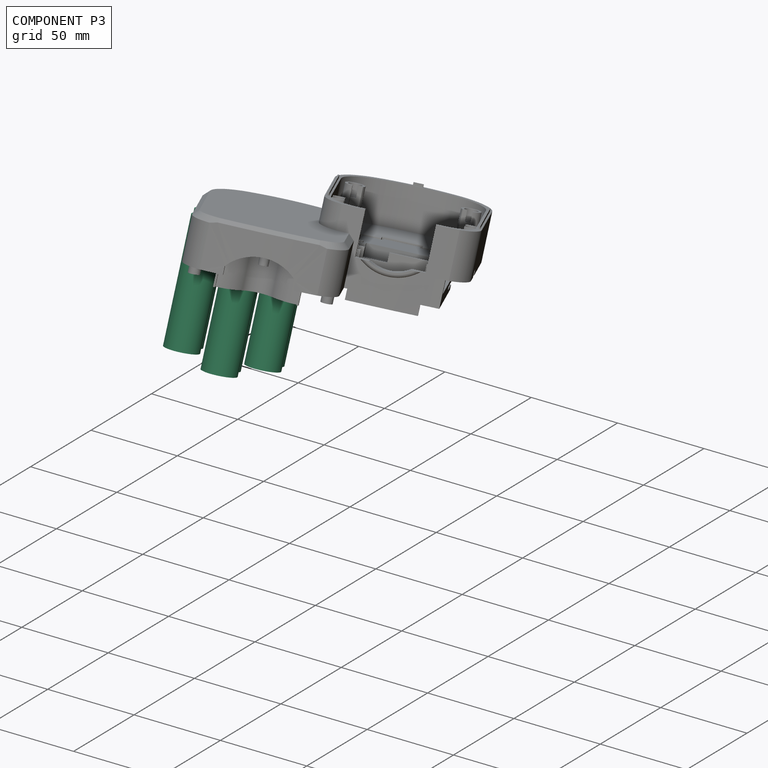
[diagram: component P3 — assembled]
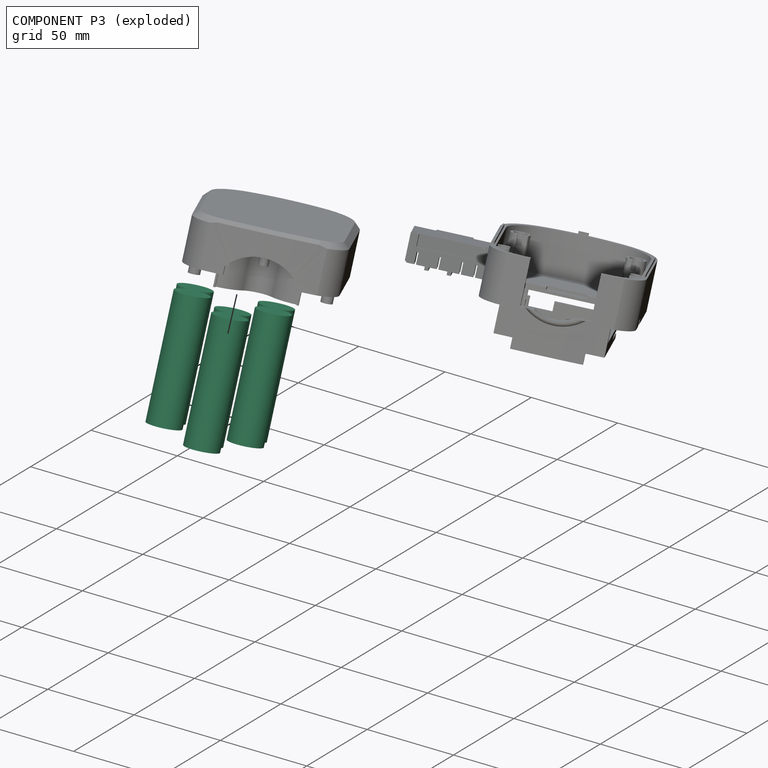
[diagram: component P3 — exploded]
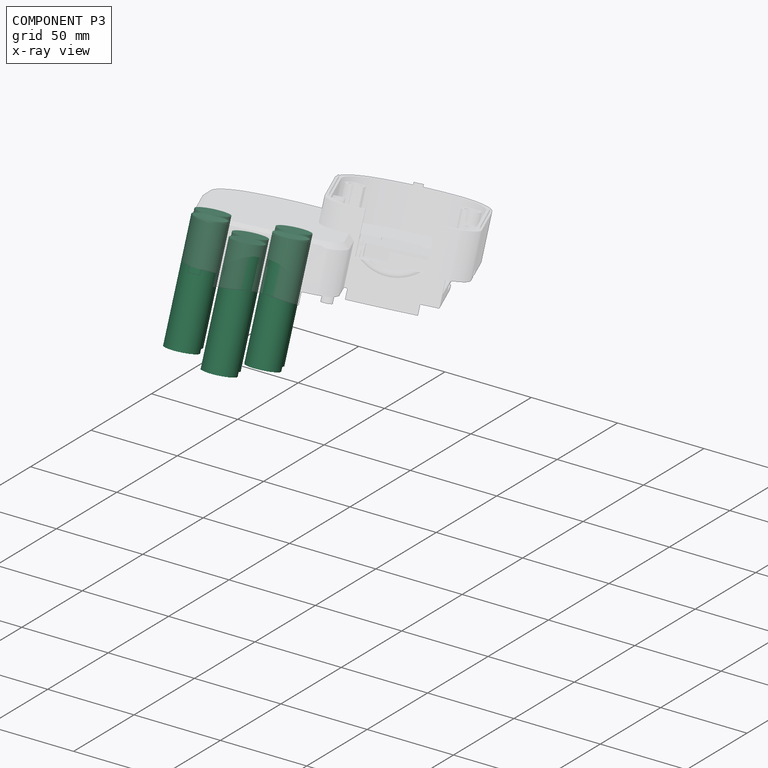
[diagram: component P3 — x-ray view]
COMPONENT P3 — recipe-attached ("3S2P001", modeled in this document).
Held by: resting contact with P0 (derived edge); resting contact with P2 (derived edge).
Construction recipe (the document's own serialized feature program — sketch geometry with constraints, then the solid features built on it; lengths are millimeters unless a unit is written):

FEATURE [Sketcher::SketchObject] Sketch007
  ArcFitTolerance = 1e-06
  AttachmentSupport = -> [Origin004]
  ExternalTypes = [0]
  FullyConstrained = true
  MakeInternals = false
  MapMode = 5
  Placement = pos=(0,0,0) rot=(0.57735,0.57735,0.57735;2.0944rad)
  sketch-geometry (1):
    g0: Circle CenterX=0 CenterY=0 CenterZ=0 NormalX=0 NormalY=0 NormalZ=1 AngleXU=0 Radius=9
  constraints (2):
    c: Diameter(g0) = 18
    c: Coincident(g0,g-1)
FEATURE [PartDesign::Pad] Pad004
  Direction = (1,0,0)
  Length = 65
  Length2 = 10
  Profile = -> Sketch007
  ReferenceAxis = -> Sketch007 [N_Axis]
  Refine = true
  SideType = 0
  Suppressed = false
  Type = 0
  Type2 = 0
FEATURE [PartDesign::LinearPattern] Linear_Pattern
  Direction = -> Sketch007 [V_Axis]
  Direction2 = -> Sketch007 [H_Axis]
  Length = 18
  Length2 = 100
  Mode = 1
  Mode2 = 0
  Occurrences = 2
  Occurrences2 = 1
  Offset = 18
  Offset2 = 100
  Refine = true
  Reversed2 = false
  SpacingPattern = [18]
  SpacingPattern2 = [0]
  Spacings = [-1]
  Suppressed = false
  TransformMode = 0
FEATURE [PartDesign::MultiTransform] MultiTransform
  BaseFeature = -> Pad004
  Originals = -> [Pad004]
  Refine = true
  Suppressed = false
  TransformMode = 0
  Transformations = -> [Linear_Pattern]
FEATURE [PartDesign::Body] Body002  label="Body"
  AllowCompound = true
  Group = -> [Sketch007,Pad004,MultiTransform,Linear_Pattern]
  Origin = -> Origin004
  Tip = -> MultiTransform
FEATURE [PartDesign::FeatureBase] Clone001
  BaseFeature = -> Body002
  Suppressed = false
FEATURE [PartDesign::Body] Body003
  AllowCompound = false
  Group = -> [Clone001]
  Origin = -> Origin008
  Placement = pos=(7,19.75,0) rot=(0,0,1;0rad)
  Tip = -> Clone001
FEATURE [PartDesign::FeatureBase] Clone002
  BaseFeature = -> Body002
  Suppressed = false
FEATURE [PartDesign::Body] Body004
  AllowCompound = false
  Group = -> [Clone002]
  Origin = -> Origin010
  Placement = pos=(0,39.5,0) rot=(0,0,1;0rad)
  Tip = -> Clone002
PROVENANCE & LICENSES
Assembly and component geometry: a FreeCAD (.FCStd) document from a public repository crawl; components, placements and joints were extracted with FreeCAD and each solid tessellated.
Construction recipes: the document's own serialized feature recipes (and, for linked parts, the recipes of companion documents from the same project).
License: as declared in the source repository (recorded in the dataset sidecar).
Joints: native FreeCAD joints and A2plus constraints are mapped to standard mate types; edges marked 'derived from contact' connect touching components and are measured from the geometry, not modeled.
Verification: 4 of this assembly's 4 components carry a construction recipe (4 from this document itself); the rest are geometry-only. Every component's tessellation passed the extraction mesh gates (mesh-volume checksum against the B-rep where available, bounding-box inflation <= 2%).
Renders: orthographic iso camera (az 35 / el 25); the floor grid conveys scale (grid pitch printed in each image; no ruler). In the exploded view each component is displaced by its stored offset vector: the offsets alone carry the explosion direction (mate normal/axis signs are not orientation cues and do not encode it), and separation distances are assigned per mate-chain, not proportionally to assembly-order depth.
